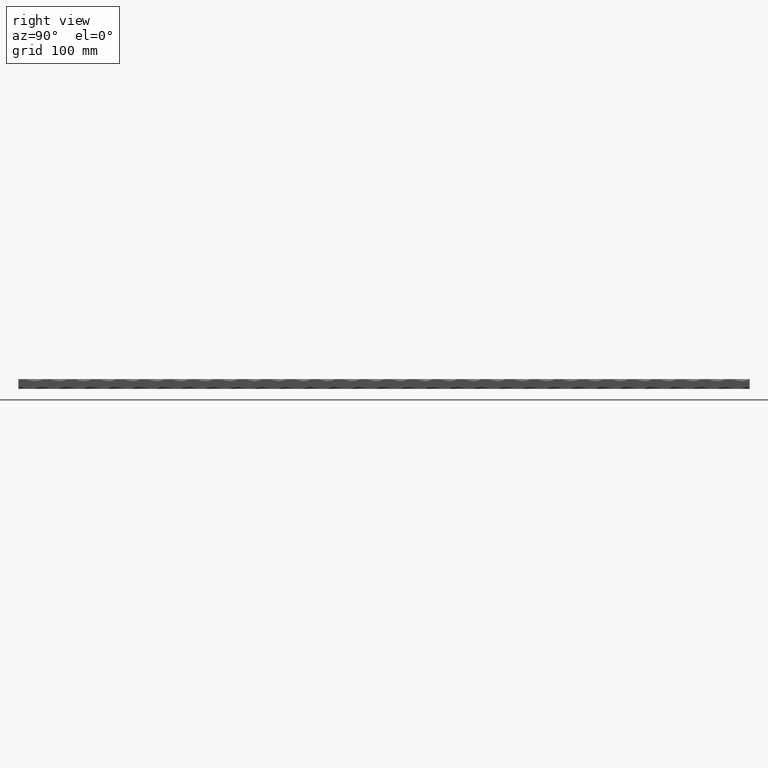
[diagram: clean part render]
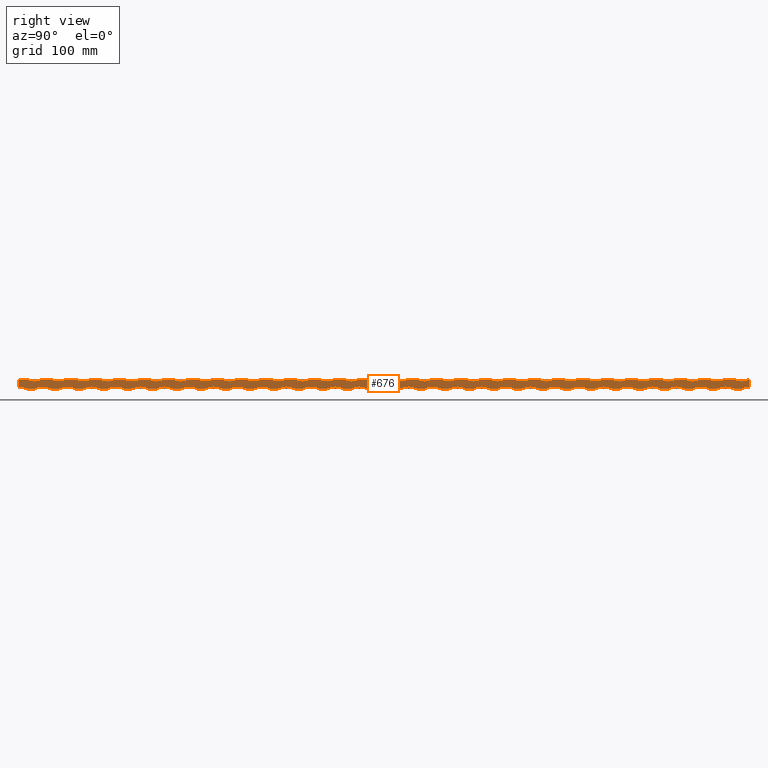
[diagram: same view with one face highlighted and labeled with its STEP entity id]
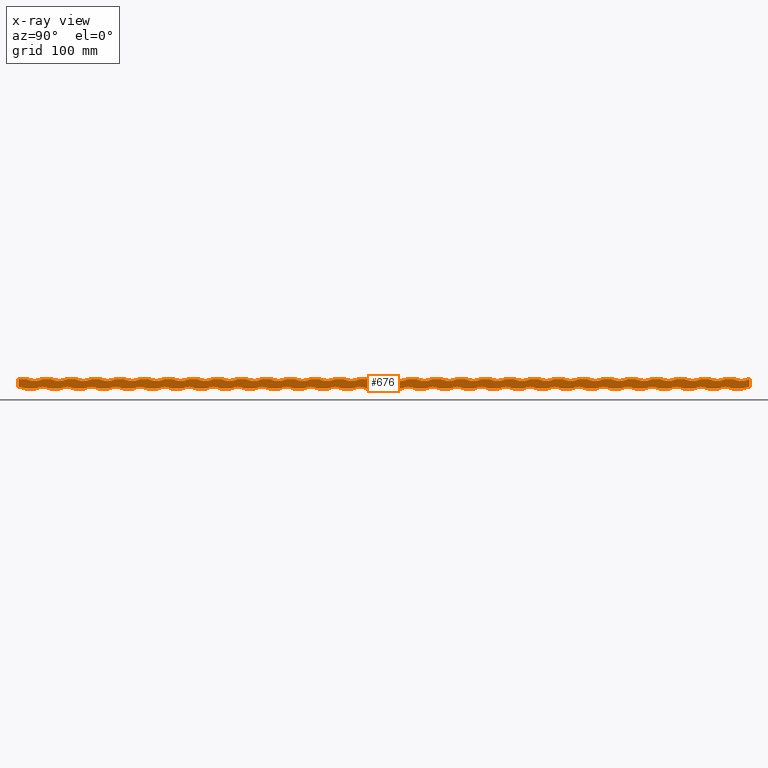
[diagram: x-ray of the same camera — body ghosted, the highlighted face saturated]
A machine part, right view. The second image highlights one B-rep face of the part: STEP entity #676.
The next image is the same camera in x-ray: the body ghosted, the highlighted face saturated — about 0% of this face is hidden behind the body in this view.
In plain terms, the highlighted planar face has unit normal (-1, 0, 0).
Its self-contained STEP definition (entity closure, byte-faithful):
#55 = DIRECTION ( 'NONE',  ( -0.000000000000000000, -1.000000000000000000, -0.000000000000000000 ) ) ;
#69 = AXIS2_PLACEMENT_3D ( 'NONE', #7534, #6528, #850 ) ;
#74 = VERTEX_POINT ( 'NONE', #5712 ) ;
#77 = DIRECTION ( 'NONE',  ( 1.632680918566404574E-16, 0.000000000000000000, 1.000000000000000000 ) ) ;
#96 = CARTESIAN_POINT ( 'NONE',  ( 6.000000000000001776, 29.99999999999996447, 6.000000000000000888 ) ) ;
#121 = DIRECTION ( 'NONE',  ( -2.040851148208006026E-16, 0.000000000000000000, -1.000000000000000000 ) ) ;
#125 = DIRECTION ( 'NONE',  ( -0.000000000000000000, -1.000000000000000000, -0.000000000000000000 ) ) ;
#155 = DIRECTION ( 'NONE',  ( -0.000000000000000000, -1.000000000000000000, -0.000000000000000000 ) ) ;
#165 = EDGE_CURVE ( 'NONE', #9865, #2082, #8959, .T. ) ;
#181 = VECTOR ( 'NONE', #155, 1000.000000000000000 ) ;
#228 = VERTEX_POINT ( 'NONE', #3615 ) ;
#233 = CARTESIAN_POINT ( 'NONE',  ( 5.999999999999995559, -300.0000000000000000, -24.75000000000002132 ) ) ;
#239 = VERTEX_POINT ( 'NONE', #12525 ) ;
#301 = EDGE_CURVE ( 'NONE', #5498, #3734, #4106, .T. ) ;
#316 = AXIS2_PLACEMENT_3D ( 'NONE', #11606, #13960, #619 ) ;
#321 = CARTESIAN_POINT ( 'NONE',  ( 6.000000000000000888, 450.0000000000000000, 6.000000000000000888 ) ) ;
#345 = VECTOR ( 'NONE', #13738, 1000.000000000000000 ) ;
#348 = AXIS2_PLACEMENT_3D ( 'NONE', #10404, #5922, #6970 ) ;
#354 = CARTESIAN_POINT ( 'NONE',  ( 6.000000000000001776, -210.0000000000000000, 6.000000000000000888 ) ) ;
#375 = AXIS2_PLACEMENT_3D ( 'NONE', #9559, #3924, #1769 ) ;
#398 = VERTEX_POINT ( 'NONE', #7036 ) ;
#402 = VECTOR ( 'NONE', #12047, 1000.000000000000000 ) ;
#406 = CARTESIAN_POINT ( 'NONE',  ( 6.000000000000001776, -120.0000000000000000, 6.000000000000000888 ) ) ;
#420 = VECTOR ( 'NONE', #8301, 1000.000000000000000 ) ;
#426 = CARTESIAN_POINT ( 'NONE',  ( 5.999999999999999112, 450.0000000000000000, -5.999999999999999112 ) ) ;
#431 = AXIS2_PLACEMENT_3D ( 'NONE', #1066, #8869, #2204 ) ;
#461 = DIRECTION ( 'NONE',  ( -0.000000000000000000, -1.000000000000000000, -0.000000000000000000 ) ) ;
#519 = LINE ( 'NONE', #11601, #2084 ) ;
#588 = VERTEX_POINT ( 'NONE', #1432 ) ;
#617 = DIRECTION ( 'NONE',  ( -0.000000000000000000, -1.000000000000000000, -0.000000000000000000 ) ) ;
#619 = DIRECTION ( 'NONE',  ( 1.445602896647339410E-16, 0.000000000000000000, 1.000000000000000000 ) ) ;
#635 = ORIENTED_EDGE ( 'NONE', *, *, #10769, .F. ) ;
#648 = CARTESIAN_POINT ( 'NONE',  ( 6.000000000000000888, -130.0000000000000000, 24.75000000000002487 ) ) ;
#667 = DIRECTION ( 'NONE',  ( -1.000000000000000000, 0.000000000000000000, 2.220446049250313081E-16 ) ) ;
#676 = ADVANCED_FACE ( 'NONE', ( #11231 ), #2718, .F. ) ;
#679 = CARTESIAN_POINT ( 'NONE',  ( 6.000000000000000888, -410.0000000000000568, 6.000000000000000888 ) ) ;
#698 = AXIS2_PLACEMENT_3D ( 'NONE', #10259, #8071, #1370 ) ;
#705 = CIRCLE ( 'NONE', #2476, 21.25000000000002487 ) ;
#706 = DIRECTION ( 'NONE',  ( -0.000000000000000000, -1.000000000000000000, -0.000000000000000000 ) ) ;
#720 = LINE ( 'NONE', #3856, #3859 ) ;
#732 = ORIENTED_EDGE ( 'NONE', *, *, #1698, .F. ) ;
#744 = VERTEX_POINT ( 'NONE', #805 ) ;
#763 = CARTESIAN_POINT ( 'NONE',  ( 6.000000000000000000, 19.99999999999996092, 24.75000000000002487 ) ) ;
#791 = AXIS2_PLACEMENT_3D ( 'NONE', #11512, #7317, #9151 ) ;
#805 = CARTESIAN_POINT ( 'NONE',  ( 5.999999999999998224, 410.0000000000000000, -6.000000000000000000 ) ) ;
#815 = DIRECTION ( 'NONE',  ( -2.040851148208006026E-16, 0.000000000000000000, -1.000000000000000000 ) ) ;
#821 = VERTEX_POINT ( 'NONE', #6756 ) ;
#825 = AXIS2_PLACEMENT_3D ( 'NONE', #10925, #14292, #1843 ) ;
#829 = DIRECTION ( 'NONE',  ( -0.000000000000000000, -1.000000000000000000, -0.000000000000000000 ) ) ;
#850 = DIRECTION ( 'NONE',  ( -2.040851148208006026E-16, 1.776356839400250465E-15, -1.000000000000000000 ) ) ;
#855 = CARTESIAN_POINT ( 'NONE',  ( 5.999999999999999112, -109.9999999999999858, -6.000000000000000000 ) ) ;
#863 = ORIENTED_EDGE ( 'NONE', *, *, #13345, .T. ) ;
#868 = CIRCLE ( 'NONE', #1050, 21.25000000000002842 ) ;
#873 = DIRECTION ( 'NONE',  ( 1.000000000000000000, -0.000000000000000000, -1.445602896647339410E-16 ) ) ;
#892 = AXIS2_PLACEMENT_3D ( 'NONE', #12692, #6010, #8282 ) ;
#932 = DIRECTION ( 'NONE',  ( -2.040851148208006026E-16, 0.000000000000000000, -1.000000000000000000 ) ) ;
#942 = CIRCLE ( 'NONE', #69, 21.25000000000002487 ) ;
#953 = EDGE_CURVE ( 'NONE', #5999, #6453, #9298, .T. ) ;
#960 = VERTEX_POINT ( 'NONE', #9157 ) ;
#977 = CARTESIAN_POINT ( 'NONE',  ( 5.999999999999999112, 450.0000000000000000, -5.999999999999999112 ) ) ;
#984 = VERTEX_POINT ( 'NONE', #10450 ) ;
#990 = AXIS2_PLACEMENT_3D ( 'NONE', #4523, #8035, #13410 ) ;
#1010 = DIRECTION ( 'NONE',  ( -0.000000000000000000, -1.000000000000000000, -0.000000000000000000 ) ) ;
#1037 = EDGE_CURVE ( 'NONE', #13809, #5285, #4962, .T. ) ;
#1050 = AXIS2_PLACEMENT_3D ( 'NONE', #5209, #9663, #5162 ) ;
#1066 = CARTESIAN_POINT ( 'NONE',  ( 6.000000000000000888, -250.0000000000000000, 24.75000000000002487 ) ) ;
#1079 = DIRECTION ( 'NONE',  ( -0.000000000000000000, -1.000000000000000000, -0.000000000000000000 ) ) ;
#1084 = ORIENTED_EDGE ( 'NONE', *, *, #6187, .T. ) ;
#1104 = VERTEX_POINT ( 'NONE', #11774 ) ;
#1122 = ORIENTED_EDGE ( 'NONE', *, *, #9330, .T. ) ;
#1132 = VERTEX_POINT ( 'NONE', #8389 ) ;
#1146 = DIRECTION ( 'NONE',  ( -2.040851148208006026E-16, 0.000000000000000000, -1.000000000000000000 ) ) ;
#1152 = CARTESIAN_POINT ( 'NONE',  ( 5.999999999999999112, 450.0000000000000000, -5.999999999999999112 ) ) ;
#1155 = CARTESIAN_POINT ( 'NONE',  ( 6.000000000000000000, 369.9999999999999432, 6.000000000000000888 ) ) ;
#1192 = CARTESIAN_POINT ( 'NONE',  ( 5.999999999999999112, 450.0000000000000000, -5.999999999999999112 ) ) ;
#1195 = DIRECTION ( 'NONE',  ( -0.000000000000000000, -1.000000000000000000, -0.000000000000000000 ) ) ;
#1198 = EDGE_CURVE ( 'NONE', #398, #1449, #7218, .T. ) ;
#1211 = AXIS2_PLACEMENT_3D ( 'NONE', #13336, #12176, #932 ) ;
#1225 = VERTEX_POINT ( 'NONE', #9648 ) ;
#1240 = DIRECTION ( 'NONE',  ( -1.000000000000000000, 0.000000000000000000, 2.220446049250313081E-16 ) ) ;
#1271 = CARTESIAN_POINT ( 'NONE',  ( 5.999999999999995559, -149.9999999999999716, -24.75000000000002132 ) ) ;
#1295 = DIRECTION ( 'NONE',  ( -0.000000000000000000, -1.000000000000000000, -0.000000000000000000 ) ) ;
#1310 = CARTESIAN_POINT ( 'NONE',  ( 6.000000000000000000, 279.9999999999999432, 6.000000000000000888 ) ) ;
#1336 = CARTESIAN_POINT ( 'NONE',  ( 6.000000000000000000, 399.9999999999999432, 6.000000000000000888 ) ) ;
#1339 = CARTESIAN_POINT ( 'NONE',  ( 6.000000000000001776, 210.0000000000000284, 6.000000000000000888 ) ) ;
#1340 = CARTESIAN_POINT ( 'NONE',  ( 5.999999999999998224, 49.99999999999998579, -6.000000000000000000 ) ) ;
#1361 = DIRECTION ( 'NONE',  ( 1.000000000000000000, -0.000000000000000000, -1.445602896647339410E-16 ) ) ;
#1370 = DIRECTION ( 'NONE',  ( -2.040851148208006026E-16, 0.000000000000000000, -1.000000000000000000 ) ) ;
#1388 = CARTESIAN_POINT ( 'NONE',  ( 5.999999999999995559, 60.00000000000000000, -24.75000000000002132 ) ) ;
#1393 = ORIENTED_EDGE ( 'NONE', *, *, #11138, .T. ) ;
#1394 = VECTOR ( 'NONE', #13339, 1000.000000000000000 ) ;
#1429 = VERTEX_POINT ( 'NONE', #4907 ) ;
#1432 = CARTESIAN_POINT ( 'NONE',  ( 6.000000000000000888, -110.0000000000000426, 6.000000000000000888 ) ) ;
#1441 = CARTESIAN_POINT ( 'NONE',  ( 5.999999999999999112, 450.0000000000000000, -5.999999999999999112 ) ) ;
#1442 = CARTESIAN_POINT ( 'NONE',  ( 6.000000000000000888, 450.0000000000000000, 6.000000000000000888 ) ) ;
#1449 = VERTEX_POINT ( 'NONE', #13752 ) ;
#1470 = CIRCLE ( 'NONE', #1823, 21.25000000000002842 ) ;
#1475 = CARTESIAN_POINT ( 'NONE',  ( 6.000000000000000888, 450.0000000000000000, 6.000000000000000888 ) ) ;
#1507 = VERTEX_POINT ( 'NONE', #7315 ) ;
#1508 = CIRCLE ( 'NONE', #11472, 21.25000000000002487 ) ;
#1555 = LINE ( 'NONE', #12119, #13942 ) ;
#1568 = EDGE_CURVE ( 'NONE', #11582, #12984, #6677, .T. ) ;
#1575 = EDGE_CURVE ( 'NONE', #12929, #7190, #9820, .T. ) ;
#1631 = ORIENTED_EDGE ( 'NONE', *, *, #1575, .T. ) ;
#1632 = CARTESIAN_POINT ( 'NONE',  ( 6.000000000000000888, 450.0000000000000000, 6.000000000000000888 ) ) ;
#1647 = AXIS2_PLACEMENT_3D ( 'NONE', #13855, #5890, #8157 ) ;
#1654 = VERTEX_POINT ( 'NONE', #5342 ) ;
#1667 = ORIENTED_EDGE ( 'NONE', *, *, #10755, .F. ) ;
#1669 = CARTESIAN_POINT ( 'NONE',  ( 6.000000000000001776, -149.9999999999999716, 6.000000000000000888 ) ) ;
#1686 = AXIS2_PLACEMENT_3D ( 'NONE', #2716, #3884, #5178 ) ;
#1698 = EDGE_CURVE ( 'NONE', #6822, #11154, #11931, .T. ) ;
#1725 = CARTESIAN_POINT ( 'NONE',  ( 6.000000000000000888, 450.0000000000000000, 6.000000000000000888 ) ) ;
#1748 = CIRCLE ( 'NONE', #11807, 21.25000000000002487 ) ;
#1767 = DIRECTION ( 'NONE',  ( -1.000000000000000000, 0.000000000000000000, 2.220446049250313081E-16 ) ) ;
#1769 = DIRECTION ( 'NONE',  ( 1.632680918566404574E-16, 0.000000000000000000, 1.000000000000000000 ) ) ;
#1776 = EDGE_CURVE ( 'NONE', #5311, #4765, #4236, .T. ) ;
#1782 = EDGE_CURVE ( 'NONE', #5155, #7004, #2483, .T. ) ;
#1786 = VECTOR ( 'NONE', #617, 1000.000000000000000 ) ;
#1823 = AXIS2_PLACEMENT_3D ( 'NONE', #4515, #4714, #3434 ) ;
#1831 = VERTEX_POINT ( 'NONE', #4989 ) ;
#1843 = DIRECTION ( 'NONE',  ( -2.040851148208006026E-16, 0.000000000000000000, -1.000000000000000000 ) ) ;
#1884 = EDGE_CURVE ( 'NONE', #11229, #1104, #12751, .T. ) ;
#1890 = DIRECTION ( 'NONE',  ( -1.000000000000000000, 0.000000000000000000, 2.220446049250313081E-16 ) ) ;
#1913 = VECTOR ( 'NONE', #13687, 1000.000000000000000 ) ;
#1917 = CIRCLE ( 'NONE', #2195, 21.25000000000002487 ) ;
#1933 = CARTESIAN_POINT ( 'NONE',  ( 5.999999999999995559, -270.0000000000000000, -24.75000000000002132 ) ) ;
#1948 = DIRECTION ( 'NONE',  ( 1.000000000000000000, -0.000000000000000000, -1.445602896647339410E-16 ) ) ;
#1959 = CARTESIAN_POINT ( 'NONE',  ( 6.000000000000000888, 450.0000000000000000, 6.000000000000000888 ) ) ;
#1999 = CARTESIAN_POINT ( 'NONE',  ( 6.000000000000000888, 450.0000000000000000, 6.000000000000000888 ) ) ;
#2018 = VERTEX_POINT ( 'NONE', #9775 ) ;
#2033 = ORIENTED_EDGE ( 'NONE', *, *, #3748, .F. ) ;
#2035 = VECTOR ( 'NONE', #3659, 1000.000000000000000 ) ;
#2065 = CARTESIAN_POINT ( 'NONE',  ( 5.999999999999998224, 200.0000000000000000, -6.000000000000000000 ) ) ;
#2071 = DIRECTION ( 'NONE',  ( -0.000000000000000000, -1.000000000000000000, -0.000000000000000000 ) ) ;
#2082 = VERTEX_POINT ( 'NONE', #13041 ) ;
#2084 = VECTOR ( 'NONE', #14008, 1000.000000000000000 ) ;
#2088 = CIRCLE ( 'NONE', #13750, 21.25000000000002487 ) ;
#2090 = DIRECTION ( 'NONE',  ( 1.000000000000000000, -0.000000000000000000, -1.445602896647339410E-16 ) ) ;
#2094 = CARTESIAN_POINT ( 'NONE',  ( 6.000000000000000000, 110.0000000000000426, 24.75000000000002487 ) ) ;
#2109 = ORIENTED_EDGE ( 'NONE', *, *, #14384, .F. ) ;
#2111 = CARTESIAN_POINT ( 'NONE',  ( 5.999999999999999112, -139.9999999999999716, -6.000000000000000000 ) ) ;
#2127 = CARTESIAN_POINT ( 'NONE',  ( 6.000000000000001776, -6.938893903907228378E-15, 6.000000000000000888 ) ) ;
#2135 = LINE ( 'NONE', #426, #4752 ) ;
#2145 = EDGE_CURVE ( 'NONE', #4596, #7551, #10888, .T. ) ;
#2147 = EDGE_CURVE ( 'NONE', #5105, #8439, #9098, .T. ) ;
#2153 = CIRCLE ( 'NONE', #8498, 21.25000000000002487 ) ;
#2169 = LINE ( 'NONE', #7801, #14185 ) ;
#2187 = VERTEX_POINT ( 'NONE', #10953 ) ;
#2191 = DIRECTION ( 'NONE',  ( -0.000000000000000000, -1.000000000000000000, -0.000000000000000000 ) ) ;
#2195 = AXIS2_PLACEMENT_3D ( 'NONE', #6944, #5792, #121 ) ;
#2200 = AXIS2_PLACEMENT_3D ( 'NONE', #2094, #873, #7510 ) ;
#2204 = DIRECTION ( 'NONE',  ( 1.632680918566404574E-16, 0.000000000000000000, 1.000000000000000000 ) ) ;
#2246 = VERTEX_POINT ( 'NONE', #3689 ) ;
#2259 = VECTOR ( 'NONE', #2071, 1000.000000000000000 ) ;
#2265 = DIRECTION ( 'NONE',  ( -0.000000000000000000, -1.000000000000000000, -0.000000000000000000 ) ) ;
#2279 = DIRECTION ( 'NONE',  ( -1.000000000000000000, 0.000000000000000000, 2.220446049250313081E-16 ) ) ;
#2291 = ORIENTED_EDGE ( 'NONE', *, *, #11304, .F. ) ;
#2321 = EDGE_CURVE ( 'NONE', #13171, #14209, #11557, .T. ) ;
#2338 = DIRECTION ( 'NONE',  ( -2.040851148208006026E-16, 0.000000000000000000, -1.000000000000000000 ) ) ;
#2339 = VECTOR ( 'NONE', #9698, 1000.000000000000000 ) ;
#2345 = EDGE_CURVE ( 'NONE', #11637, #7004, #4221, .T. ) ;
#2351 = DIRECTION ( 'NONE',  ( -0.000000000000000000, -1.000000000000000000, -0.000000000000000000 ) ) ;
#2379 = DIRECTION ( 'NONE',  ( -2.040851148208006026E-16, 0.000000000000000000, -1.000000000000000000 ) ) ;
#2385 = VERTEX_POINT ( 'NONE', #12403 ) ;
#2401 = CARTESIAN_POINT ( 'NONE',  ( 6.000000000000000000, 139.9999999999999716, 24.75000000000002487 ) ) ;
#2438 = EDGE_CURVE ( 'NONE', #13809, #3150, #10509, .T. ) ;
#2440 = EDGE_CURVE ( 'NONE', #3406, #7407, #7182, .T. ) ;
#2442 = VECTOR ( 'NONE', #4651, 1000.000000000000000 ) ;
#2456 = CARTESIAN_POINT ( 'NONE',  ( 6.000000000000000888, 450.0000000000000000, 6.000000000000000888 ) ) ;
#2476 = AXIS2_PLACEMENT_3D ( 'NONE', #14157, #8663, #7673 ) ;
#2479 = DIRECTION ( 'NONE',  ( 1.632680918566404574E-16, 0.000000000000000000, 1.000000000000000000 ) ) ;
#2483 = LINE ( 'NONE', #13515, #11048 ) ;
#2558 = EDGE_CURVE ( 'NONE', #398, #1831, #13791, .T. ) ;
#2591 = CARTESIAN_POINT ( 'NONE',  ( 5.999999999999999112, -169.9999999999999716, -6.000000000000000000 ) ) ;
#2622 = CIRCLE ( 'NONE', #698, 21.25000000000002487 ) ;
#2657 = ORIENTED_EDGE ( 'NONE', *, *, #4985, .T. ) ;
#2669 = VECTOR ( 'NONE', #8235, 1000.000000000000000 ) ;
#2695 = EDGE_CURVE ( 'NONE', #8251, #5829, #10131, .T. ) ;
#2701 = CARTESIAN_POINT ( 'NONE',  ( 6.000000000000000888, 450.0000000000000000, 6.000000000000000888 ) ) ;
#2716 = CARTESIAN_POINT ( 'NONE',  ( 6.000000000000000000, 49.99999999999998579, 24.75000000000002487 ) ) ;
#2717 = ORIENTED_EDGE ( 'NONE', *, *, #14370, .F. ) ;
#2718 = PLANE ( 'NONE',  #316 ) ;
#2720 = EDGE_CURVE ( 'NONE', #7232, #11011, #11913, .T. ) ;
#2723 = ORIENTED_EDGE ( 'NONE', *, *, #11321, .T. ) ;
#2724 = CARTESIAN_POINT ( 'NONE',  ( 6.000000000000001776, -60.00000000000000000, 6.000000000000000888 ) ) ;
#2797 = VECTOR ( 'NONE', #10304, 1000.000000000000000 ) ;
#2800 = EDGE_CURVE ( 'NONE', #11582, #2385, #8397, .T. ) ;
#2832 = VECTOR ( 'NONE', #125, 1000.000000000000000 ) ;
#2855 = ORIENTED_EDGE ( 'NONE', *, *, #1782, .F. ) ;
#2874 = VERTEX_POINT ( 'NONE', #4766 ) ;
#2876 = CARTESIAN_POINT ( 'NONE',  ( 5.999999999999999112, 450.0000000000000000, -5.999999999999999112 ) ) ;
#2926 = CARTESIAN_POINT ( 'NONE',  ( 5.999999999999999112, -450.0000000000000000, -5.999999999999999112 ) ) ;
#2928 = CIRCLE ( 'NONE', #12352, 21.25000000000002842 ) ;
#2932 = DIRECTION ( 'NONE',  ( -0.000000000000000000, -1.000000000000000000, -0.000000000000000000 ) ) ;
#2941 = VECTOR ( 'NONE', #6660, 1000.000000000000000 ) ;
#2950 = CIRCLE ( 'NONE', #431, 21.25000000000002842 ) ;
#2953 = ORIENTED_EDGE ( 'NONE', *, *, #8872, .T. ) ;
#2964 = VERTEX_POINT ( 'NONE', #2127 ) ;
#2977 = VERTEX_POINT ( 'NONE', #3735 ) ;
#2991 = ORIENTED_EDGE ( 'NONE', *, *, #3557, .T. ) ;
#2992 = DIRECTION ( 'NONE',  ( 1.632680918566404574E-16, 1.795949010423044909E-15, 1.000000000000000000 ) ) ;
#3012 = DIRECTION ( 'NONE',  ( -1.000000000000000000, 0.000000000000000000, 2.220446049250313081E-16 ) ) ;
#3035 = VERTEX_POINT ( 'NONE', #855 ) ;
#3043 = ORIENTED_EDGE ( 'NONE', *, *, #6445, .T. ) ;
#3055 = ORIENTED_EDGE ( 'NONE', *, *, #2800, .F. ) ;
#3073 = CARTESIAN_POINT ( 'NONE',  ( 5.999999999999998224, 320.0000000000000000, -6.000000000000000000 ) ) ;
#3097 = DIRECTION ( 'NONE',  ( -1.000000000000000000, 0.000000000000000000, 2.220446049250313081E-16 ) ) ;
#3105 = LINE ( 'NONE', #10021, #2941 ) ;
#3150 = VERTEX_POINT ( 'NONE', #14436 ) ;
#3151 = CARTESIAN_POINT ( 'NONE',  ( 5.999999999999998224, -159.9999999999999716, -6.000000000000000000 ) ) ;
#3192 = ORIENTED_EDGE ( 'NONE', *, *, #1037, .F. ) ;
#3208 = VERTEX_POINT ( 'NONE', #5743 ) ;
#3232 = VECTOR ( 'NONE', #461, 1000.000000000000000 ) ;
#3238 = EDGE_CURVE ( 'NONE', #1132, #13619, #4734, .T. ) ;
#3288 = CIRCLE ( 'NONE', #12920, 21.25000000000002487 ) ;
#3296 = DIRECTION ( 'NONE',  ( -1.000000000000000000, 0.000000000000000000, 2.220446049250313081E-16 ) ) ;
#3297 = CIRCLE ( 'NONE', #8411, 21.25000000000002842 ) ;
#3300 = AXIS2_PLACEMENT_3D ( 'NONE', #13365, #2279, #10072 ) ;
#3350 = CARTESIAN_POINT ( 'NONE',  ( 5.999999999999995559, 210.0000000000000284, -24.75000000000002132 ) ) ;
#3377 = EDGE_CURVE ( 'NONE', #4596, #2964, #5795, .T. ) ;
#3399 = CARTESIAN_POINT ( 'NONE',  ( 6.000000000000001776, 180.0000000000000000, 6.000000000000000888 ) ) ;
#3406 = VERTEX_POINT ( 'NONE', #9261 ) ;
#3410 = VECTOR ( 'NONE', #12572, 1000.000000000000000 ) ;
#3419 = EDGE_CURVE ( 'NONE', #2874, #9504, #9418, .T. ) ;
#3428 = EDGE_CURVE ( 'NONE', #6134, #8571, #5948, .T. ) ;
#3429 = CARTESIAN_POINT ( 'NONE',  ( 6.000000000000000888, 450.0000000000000000, 6.000000000000000888 ) ) ;
#3434 = DIRECTION ( 'NONE',  ( 1.632680918566404574E-16, 0.000000000000000000, 1.000000000000000000 ) ) ;
#3441 = EDGE_CURVE ( 'NONE', #821, #4765, #13230, .T. ) ;
#3449 = VECTOR ( 'NONE', #10742, 1000.000000000000000 ) ;
#3456 = CARTESIAN_POINT ( 'NONE',  ( 6.000000000000000888, 450.0000000000000000, 6.000000000000000888 ) ) ;
#3459 = CARTESIAN_POINT ( 'NONE',  ( 5.999999999999999112, 450.0000000000000000, -5.999999999999999112 ) ) ;
#3461 = VERTEX_POINT ( 'NONE', #13640 ) ;
#3464 = LINE ( 'NONE', #7660, #7661 ) ;
#3481 = CARTESIAN_POINT ( 'NONE',  ( 6.000000000000000888, 450.0000000000000000, 6.000000000000000888 ) ) ;
#3483 = VECTOR ( 'NONE', #7493, 1000.000000000000000 ) ;
#3486 = DIRECTION ( 'NONE',  ( -2.040851148208006026E-16, 1.632680918566404821E-15, -1.000000000000000000 ) ) ;
#3502 = VECTOR ( 'NONE', #3819, 1000.000000000000000 ) ;
#3543 = DIRECTION ( 'NONE',  ( -0.000000000000000000, -1.000000000000000000, -0.000000000000000000 ) ) ;
#3549 = VECTOR ( 'NONE', #4847, 1000.000000000000000 ) ;
#3557 = EDGE_CURVE ( 'NONE', #10517, #9462, #1748, .T. ) ;
#3577 = EDGE_LOOP ( 'NONE', ( #10142, #4201, #12969, #7903, #11921, #8318, #4045, #2717, #12800, #635, #1084, #10593, #6049, #12183, #7026, #11279, #6731, #9651, #14381, #9158, #3913, #9284, #11995, #14375, #1631, #2291, #5590, #11403, #14196, #5984, #9410, #6368, #13896, #4102, #8398, #12732, #863, #9447, #2723, #7954, #6908, #3669, #2991, #6319, #11713, #2855, #8247, #3192, #7366, #8771, #6334, #12484, #6862, #2033, #11709, #13254, #11890, #10844, #6567, #8050, #10695, #13108, #11111, #11271, #7876, #1122, #4546, #9953, #6628, #6656, #4311, #3910, #4487, #2953, #10235, #3043, #7559, #4913, #9140, #7558, #7913, #11970, #1667, #2657, #5429, #4620, #6399, #6354, #6963, #9812, #12219, #4367, #13658, #6465, #10907, #11474, #12252, #7027, #4478, #9503, #7804, #7659, #8610, #11812, #5991, #11608, #9594, #7377, #11378, #4077, #732, #6494, #12085, #5853, #3055, #11958, #7554, #14017, #1393, #9170, #2109, #9636, #5169 ) ) ;
#3596 = DIRECTION ( 'NONE',  ( -1.000000000000000000, 0.000000000000000000, 2.220446049250313081E-16 ) ) ;
#3613 = CARTESIAN_POINT ( 'NONE',  ( 5.999999999999999112, 440.0000000000000000, -6.000000000000000000 ) ) ;
#3615 = CARTESIAN_POINT ( 'NONE',  ( 5.999999999999999112, 220.0000000000000284, -6.000000000000000000 ) ) ;
#3642 = EDGE_CURVE ( 'NONE', #8606, #2246, #6805, .T. ) ;
#3659 = DIRECTION ( 'NONE',  ( -0.000000000000000000, -1.000000000000000000, -0.000000000000000000 ) ) ;
#3669 = ORIENTED_EDGE ( 'NONE', *, *, #7106, .F. ) ;
#3682 = DIRECTION ( 'NONE',  ( -0.000000000000000000, -1.000000000000000000, -0.000000000000000000 ) ) ;
#3684 = AXIS2_PLACEMENT_3D ( 'NONE', #7416, #8621, #9687 ) ;
#3689 = CARTESIAN_POINT ( 'NONE',  ( 6.000000000000000000, 450.0000000000000000, -3.499999999999996891 ) ) ;
#3692 = VECTOR ( 'NONE', #8259, 1000.000000000000000 ) ;
#3723 = VERTEX_POINT ( 'NONE', #8911 ) ;
#3734 = VERTEX_POINT ( 'NONE', #96 ) ;
#3735 = CARTESIAN_POINT ( 'NONE',  ( 5.999999999999998224, 110.0000000000000426, -6.000000000000000000 ) ) ;
#3737 = EDGE_CURVE ( 'NONE', #6176, #7198, #4360, .T. ) ;
#3747 = DIRECTION ( 'NONE',  ( 1.632680918566404574E-16, 0.000000000000000000, 1.000000000000000000 ) ) ;
#3748 = EDGE_CURVE ( 'NONE', #744, #5551, #11348, .T. ) ;
#3780 = AXIS2_PLACEMENT_3D ( 'NONE', #8913, #11168, #11268 ) ;
#3819 = DIRECTION ( 'NONE',  ( -1.445602896647339163E-16, -0.000000000000000000, -1.000000000000000000 ) ) ;
#3856 = CARTESIAN_POINT ( 'NONE',  ( 5.999999999999999112, 450.0000000000000000, -5.999999999999999112 ) ) ;
#3857 = EDGE_CURVE ( 'NONE', #11875, #8571, #7678, .T. ) ;
#3859 = VECTOR ( 'NONE', #11718, 1000.000000000000000 ) ;
#3861 = VERTEX_POINT ( 'NONE', #11541 ) ;
#3884 = DIRECTION ( 'NONE',  ( 1.000000000000000000, -0.000000000000000000, -1.445602896647339410E-16 ) ) ;
#3910 = ORIENTED_EDGE ( 'NONE', *, *, #14031, .T. ) ;
#3913 = ORIENTED_EDGE ( 'NONE', *, *, #7566, .T. ) ;
#3924 = DIRECTION ( 'NONE',  ( 1.000000000000000000, -0.000000000000000000, -1.445602896647339410E-16 ) ) ;
#3968 = EDGE_CURVE ( 'NONE', #2187, #3150, #519, .T. ) ;
#4011 = CARTESIAN_POINT ( 'NONE',  ( 5.999999999999995559, 239.9999999999999432, -24.75000000000002132 ) ) ;
#4045 = ORIENTED_EDGE ( 'NONE', *, *, #13235, .T. ) ;
#4058 = DIRECTION ( 'NONE',  ( 1.632680918566404574E-16, 0.000000000000000000, 1.000000000000000000 ) ) ;
#4077 = ORIENTED_EDGE ( 'NONE', *, *, #14460, .T. ) ;
#4092 = CARTESIAN_POINT ( 'NONE',  ( 5.999999999999995559, 149.9999999999999716, -24.75000000000002132 ) ) ;
#4102 = ORIENTED_EDGE ( 'NONE', *, *, #11043, .F. ) ;
#4106 = LINE ( 'NONE', #4643, #11611 ) ;
#4111 = VERTEX_POINT ( 'NONE', #2065 ) ;
#4121 = EDGE_CURVE ( 'NONE', #5999, #1507, #3464, .T. ) ;
#4131 = VECTOR ( 'NONE', #1295, 1000.000000000000000 ) ;
#4143 = CARTESIAN_POINT ( 'NONE',  ( 6.000000000000000888, 450.0000000000000000, 6.000000000000000888 ) ) ;
#4201 = ORIENTED_EDGE ( 'NONE', *, *, #10067, .F. ) ;
#4221 = CIRCLE ( 'NONE', #892, 21.25000000000002487 ) ;
#4236 = CIRCLE ( 'NONE', #14144, 21.25000000000002842 ) ;
#4241 = VERTEX_POINT ( 'NONE', #9009 ) ;
#4255 = VERTEX_POINT ( 'NONE', #7771 ) ;
#4256 = CARTESIAN_POINT ( 'NONE',  ( 6.000000000000001776, -329.9999999999999432, 6.000000000000000888 ) ) ;
#4278 = LINE ( 'NONE', #6722, #11096 ) ;
#4311 = ORIENTED_EDGE ( 'NONE', *, *, #7404, .F. ) ;
#4321 = CIRCLE ( 'NONE', #8286, 21.25000000000002487 ) ;
#4324 = EDGE_CURVE ( 'NONE', #2977, #11829, #1917, .T. ) ;
#4330 = CARTESIAN_POINT ( 'NONE',  ( 6.000000000000000000, 80.00000000000001421, 24.75000000000002487 ) ) ;
#4343 = AXIS2_PLACEMENT_3D ( 'NONE', #4441, #12220, #6455 ) ;
#4360 = CIRCLE ( 'NONE', #6569, 21.25000000000002842 ) ;
#4367 = ORIENTED_EDGE ( 'NONE', *, *, #11140, .T. ) ;
#4369 = LINE ( 'NONE', #11173, #1394 ) ;
#4377 = EDGE_CURVE ( 'NONE', #9865, #13828, #9758, .T. ) ;
#4395 = VECTOR ( 'NONE', #13655, 1000.000000000000000 ) ;
#4402 = EDGE_CURVE ( 'NONE', #7177, #74, #2622, .T. ) ;
#4441 = CARTESIAN_POINT ( 'NONE',  ( 5.999999999999995559, -449.9999999999999432, -24.75000000000002487 ) ) ;
#4474 = EDGE_CURVE ( 'NONE', #13398, #11829, #11165, .T. ) ;
#4478 = ORIENTED_EDGE ( 'NONE', *, *, #2695, .F. ) ;
#4487 = ORIENTED_EDGE ( 'NONE', *, *, #11041, .F. ) ;
#4490 = CIRCLE ( 'NONE', #13873, 21.25000000000002842 ) ;
#4491 = EDGE_CURVE ( 'NONE', #1225, #4967, #8371, .T. ) ;
#4493 = EDGE_CURVE ( 'NONE', #7177, #984, #1555, .T. ) ;
#4515 = CARTESIAN_POINT ( 'NONE',  ( 6.000000000000000888, -100.0000000000000284, 24.75000000000002487 ) ) ;
#4523 = CARTESIAN_POINT ( 'NONE',  ( 5.999999999999995559, 300.0000000000000000, -24.75000000000002132 ) ) ;
#4526 = DIRECTION ( 'NONE',  ( 1.000000000000000000, -0.000000000000000000, -1.445602896647339410E-16 ) ) ;
#4545 = CIRCLE ( 'NONE', #12866, 21.25000000000002487 ) ;
#4546 = ORIENTED_EDGE ( 'NONE', *, *, #8878, .F. ) ;
#4559 = VECTOR ( 'NONE', #14014, 1000.000000000000000 ) ;
#4579 = LINE ( 'NONE', #11343, #2832 ) ;
#4596 = VERTEX_POINT ( 'NONE', #8753 ) ;
#4597 = EDGE_CURVE ( 'NONE', #13053, #2964, #12543, .T. ) ;
#4601 = EDGE_CURVE ( 'NONE', #6318, #9506, #705, .T. ) ;
#4605 = VERTEX_POINT ( 'NONE', #5271 ) ;
#4612 = CARTESIAN_POINT ( 'NONE',  ( 6.000000000000000888, -440.0000000000000000, 6.000000000000000888 ) ) ;
#4620 = ORIENTED_EDGE ( 'NONE', *, *, #301, .T. ) ;
#4634 = CARTESIAN_POINT ( 'NONE',  ( 5.999999999999999112, 450.0000000000000000, -5.999999999999999112 ) ) ;
#4643 = CARTESIAN_POINT ( 'NONE',  ( 6.000000000000000888, 450.0000000000000000, 6.000000000000000888 ) ) ;
#4644 = CARTESIAN_POINT ( 'NONE',  ( 6.000000000000000888, 450.0000000000000000, 6.000000000000000888 ) ) ;
#4651 = DIRECTION ( 'NONE',  ( -0.000000000000000000, -1.000000000000000000, -0.000000000000000000 ) ) ;
#4703 = VECTOR ( 'NONE', #13415, 1000.000000000000000 ) ;
#4707 = VERTEX_POINT ( 'NONE', #14395 ) ;
#4714 = DIRECTION ( 'NONE',  ( 1.000000000000000000, -0.000000000000000000, -1.445602896647339410E-16 ) ) ;
#4734 = CIRCLE ( 'NONE', #5732, 21.25000000000002487 ) ;
#4752 = VECTOR ( 'NONE', #706, 1000.000000000000000 ) ;
#4765 = VERTEX_POINT ( 'NONE', #9956 ) ;
#4766 = CARTESIAN_POINT ( 'NONE',  ( 6.000000000000000888, -200.0000000000000000, 6.000000000000000888 ) ) ;
#4836 = DIRECTION ( 'NONE',  ( 1.632680918566404574E-16, 0.000000000000000000, 1.000000000000000000 ) ) ;
#4842 = CARTESIAN_POINT ( 'NONE',  ( 5.999999999999995559, -420.0000000000000000, -24.75000000000002132 ) ) ;
#4847 = DIRECTION ( 'NONE',  ( -0.000000000000000000, -1.000000000000000000, -0.000000000000000000 ) ) ;
#4876 = LINE ( 'NONE', #13928, #3449 ) ;
#4894 = DIRECTION ( 'NONE',  ( 1.000000000000000000, -0.000000000000000000, -1.445602896647339410E-16 ) ) ;
#4897 = DIRECTION ( 'NONE',  ( 1.632680918566404574E-16, 1.795949010423044909E-15, 1.000000000000000000 ) ) ;
#4907 = CARTESIAN_POINT ( 'NONE',  ( 6.000000000000001776, -90.00000000000002842, 6.000000000000000888 ) ) ;
#4913 = ORIENTED_EDGE ( 'NONE', *, *, #11703, .T. ) ;
#4921 = CARTESIAN_POINT ( 'NONE',  ( 6.000000000000000000, 320.0000000000000000, 24.75000000000002487 ) ) ;
#4962 = LINE ( 'NONE', #13681, #3549 ) ;
#4967 = VERTEX_POINT ( 'NONE', #6132 ) ;
#4985 = EDGE_CURVE ( 'NONE', #3461, #7063, #9225, .T. ) ;
#4987 = CARTESIAN_POINT ( 'NONE',  ( 6.000000000000001776, -29.99999999999997513, 6.000000000000000888 ) ) ;
#4989 = CARTESIAN_POINT ( 'NONE',  ( 6.000000000000001776, -300.0000000000000000, 6.000000000000000888 ) ) ;
#5013 = DIRECTION ( 'NONE',  ( 1.632680918566404574E-16, 0.000000000000000000, 1.000000000000000000 ) ) ;
#5094 = DIRECTION ( 'NONE',  ( -2.040851148208006026E-16, 1.795949010423045303E-15, -1.000000000000000000 ) ) ;
#5096 = CIRCLE ( 'NONE', #13607, 21.25000000000002487 ) ;
#5105 = VERTEX_POINT ( 'NONE', #14093 ) ;
#5129 = DIRECTION ( 'NONE',  ( 1.000000000000000000, -0.000000000000000000, -1.445602896647339410E-16 ) ) ;
#5155 = VERTEX_POINT ( 'NONE', #6382 ) ;
#5156 = CARTESIAN_POINT ( 'NONE',  ( 5.999999999999999112, -19.99999999999996092, -6.000000000000000000 ) ) ;
#5162 = DIRECTION ( 'NONE',  ( 1.632680918566404574E-16, 0.000000000000000000, 1.000000000000000000 ) ) ;
#5169 = ORIENTED_EDGE ( 'NONE', *, *, #13617, .F. ) ;
#5178 = DIRECTION ( 'NONE',  ( 1.632680918566404574E-16, 1.632680918566404427E-15, 1.000000000000000000 ) ) ;
#5181 = EDGE_CURVE ( 'NONE', #4111, #228, #3288, .T. ) ;
#5194 = VERTEX_POINT ( 'NONE', #12319 ) ;
#5207 = LINE ( 'NONE', #9167, #2035 ) ;
#5209 = CARTESIAN_POINT ( 'NONE',  ( 6.000000000000000888, -430.0000000000000000, 24.75000000000002487 ) ) ;
#5219 = AXIS2_PLACEMENT_3D ( 'NONE', #1388, #3596, #3486 ) ;
#5242 = DIRECTION ( 'NONE',  ( 1.000000000000000000, -0.000000000000000000, -1.445602896647339410E-16 ) ) ;
#5249 = CARTESIAN_POINT ( 'NONE',  ( 6.000000000000000888, -320.0000000000000000, 6.000000000000000888 ) ) ;
#5261 = EDGE_CURVE ( 'NONE', #9136, #5894, #2950, .T. ) ;
#5271 = CARTESIAN_POINT ( 'NONE',  ( 5.999999999999998224, -430.0000000000000000, -6.000000000000000000 ) ) ;
#5285 = VERTEX_POINT ( 'NONE', #10042 ) ;
#5288 = DIRECTION ( 'NONE',  ( -0.000000000000000000, -1.000000000000000000, -0.000000000000000000 ) ) ;
#5300 = DIRECTION ( 'NONE',  ( -0.000000000000000000, -1.000000000000000000, -0.000000000000000000 ) ) ;
#5311 = VERTEX_POINT ( 'NONE', #1310 ) ;
#5342 = CARTESIAN_POINT ( 'NONE',  ( 5.999999999999999112, -450.0000000000000000, -3.500000000000000444 ) ) ;
#5387 = CARTESIAN_POINT ( 'NONE',  ( 6.000000000000000888, -80.00000000000001421, 6.000000000000000888 ) ) ;
#5392 = LINE ( 'NONE', #10187, #13179 ) ;
#5395 = CARTESIAN_POINT ( 'NONE',  ( 5.999999999999999112, 399.9999999999999432, -6.000000000000000000 ) ) ;
#5399 = CARTESIAN_POINT ( 'NONE',  ( 5.999999999999998224, 19.99999999999996092, -6.000000000000000000 ) ) ;
#5405 = DIRECTION ( 'NONE',  ( -0.000000000000000000, -1.000000000000000000, -0.000000000000000000 ) ) ;
#5412 = DIRECTION ( 'NONE',  ( -0.000000000000000000, -1.000000000000000000, -0.000000000000000000 ) ) ;
#5429 = ORIENTED_EDGE ( 'NONE', *, *, #12135, .F. ) ;
#5466 = CARTESIAN_POINT ( 'NONE',  ( 5.999999999999998224, 80.00000000000001421, -6.000000000000000000 ) ) ;
#5476 = DIRECTION ( 'NONE',  ( 1.632680918566404574E-16, 0.000000000000000000, 1.000000000000000000 ) ) ;
#5498 = VERTEX_POINT ( 'NONE', #6451 ) ;
#5507 = CARTESIAN_POINT ( 'NONE',  ( 6.000000000000001776, 269.9999999999999432, 6.000000000000000888 ) ) ;
#5511 = CIRCLE ( 'NONE', #8264, 21.25000000000002842 ) ;
#5518 = CARTESIAN_POINT ( 'NONE',  ( 5.999999999999999112, 130.0000000000000568, -6.000000000000000000 ) ) ;
#5530 = VERTEX_POINT ( 'NONE', #10950 ) ;
#5538 = DIRECTION ( 'NONE',  ( -2.040851148208006026E-16, 0.000000000000000000, -1.000000000000000000 ) ) ;
#5551 = VERTEX_POINT ( 'NONE', #5395 ) ;
#5590 = ORIENTED_EDGE ( 'NONE', *, *, #10479, .T. ) ;
#5594 = AXIS2_PLACEMENT_3D ( 'NONE', #1271, #9202, #5689 ) ;
#5604 = CARTESIAN_POINT ( 'NONE',  ( 5.999999999999995559, 90.00000000000002842, -24.75000000000002132 ) ) ;
#5644 = CARTESIAN_POINT ( 'NONE',  ( 6.000000000000000888, 450.0000000000000000, 6.000000000000000888 ) ) ;
#5662 = DIRECTION ( 'NONE',  ( 1.000000000000000000, -0.000000000000000000, -1.445602896647339410E-16 ) ) ;
#5664 = CARTESIAN_POINT ( 'NONE',  ( 6.000000000000000888, -140.0000000000000000, 6.000000000000000888 ) ) ;
#5689 = DIRECTION ( 'NONE',  ( -2.040851148208006026E-16, 0.000000000000000000, -1.000000000000000000 ) ) ;
#5705 = VERTEX_POINT ( 'NONE', #6835 ) ;
#5708 = LINE ( 'NONE', #11588, #3232 ) ;
#5712 = CARTESIAN_POINT ( 'NONE',  ( 5.999999999999999112, -199.9999999999999716, -6.000000000000000000 ) ) ;
#5732 = AXIS2_PLACEMENT_3D ( 'NONE', #6588, #14442, #1146 ) ;
#5743 = CARTESIAN_POINT ( 'NONE',  ( 6.000000000000000000, 129.9999999999999432, 6.000000000000000888 ) ) ;
#5747 = EDGE_CURVE ( 'NONE', #9136, #1449, #8005, .T. ) ;
#5753 = CARTESIAN_POINT ( 'NONE',  ( 6.000000000000000000, 350.0000000000000568, 24.75000000000002487 ) ) ;
#5754 = DIRECTION ( 'NONE',  ( -0.000000000000000000, -1.000000000000000000, -0.000000000000000000 ) ) ;
#5792 = DIRECTION ( 'NONE',  ( -1.000000000000000000, 0.000000000000000000, 2.220446049250313081E-16 ) ) ;
#5794 = AXIS2_PLACEMENT_3D ( 'NONE', #2401, #13638, #10250 ) ;
#5795 = CIRCLE ( 'NONE', #13427, 21.25000000000002842 ) ;
#5804 = DIRECTION ( 'NONE',  ( 1.000000000000000000, -0.000000000000000000, -1.445602896647339410E-16 ) ) ;
#5829 = VERTEX_POINT ( 'NONE', #1669 ) ;
#5853 = ORIENTED_EDGE ( 'NONE', *, *, #12134, .T. ) ;
#5854 = AXIS2_PLACEMENT_3D ( 'NONE', #9041, #8766, #13181 ) ;
#5867 = LINE ( 'NONE', #12397, #13310 ) ;
#5868 = DIRECTION ( 'NONE',  ( 1.000000000000000000, -0.000000000000000000, -1.445602896647339410E-16 ) ) ;
#5889 = AXIS2_PLACEMENT_3D ( 'NONE', #11210, #5868, #11302 ) ;
#5890 = DIRECTION ( 'NONE',  ( 1.000000000000000000, -0.000000000000000000, -1.445602896647339410E-16 ) ) ;
#5894 = VERTEX_POINT ( 'NONE', #10612 ) ;
#5922 = DIRECTION ( 'NONE',  ( 1.000000000000000000, -0.000000000000000000, -1.445602896647339410E-16 ) ) ;
#5927 = CARTESIAN_POINT ( 'NONE',  ( 6.000000000000000888, 450.0000000000000000, 6.000000000000000888 ) ) ;
#5928 = CARTESIAN_POINT ( 'NONE',  ( 5.999999999999999112, 450.0000000000000000, -5.999999999999999112 ) ) ;
#5948 = CIRCLE ( 'NONE', #8793, 21.25000000000002842 ) ;
#5953 = DIRECTION ( 'NONE',  ( 1.000000000000000000, -0.000000000000000000, -1.445602896647339410E-16 ) ) ;
#5959 = LINE ( 'NONE', #5644, #11536 ) ;
#5962 = VERTEX_POINT ( 'NONE', #9885 ) ;
#5976 = CARTESIAN_POINT ( 'NONE',  ( 6.000000000000001776, 360.0000000000000568, 6.000000000000000888 ) ) ;
#5984 = ORIENTED_EDGE ( 'NONE', *, *, #6114, .F. ) ;
#5991 = ORIENTED_EDGE ( 'NONE', *, *, #5261, .F. ) ;
#5992 = DIRECTION ( 'NONE',  ( -2.040851148208006026E-16, 0.000000000000000000, -1.000000000000000000 ) ) ;
#5999 = VERTEX_POINT ( 'NONE', #14374 ) ;
#6000 = CARTESIAN_POINT ( 'NONE',  ( 5.999999999999999112, 370.0000000000000568, -6.000000000000000000 ) ) ;
#6010 = DIRECTION ( 'NONE',  ( -1.000000000000000000, 0.000000000000000000, 2.220446049250313081E-16 ) ) ;
#6036 = EDGE_CURVE ( 'NONE', #1654, #6701, #9394, .T. ) ;
#6049 = ORIENTED_EDGE ( 'NONE', *, *, #4402, .T. ) ;
#6079 = AXIS2_PLACEMENT_3D ( 'NONE', #5753, #5804, #77 ) ;
#6091 = VECTOR ( 'NONE', #829, 1000.000000000000000 ) ;
#6114 = EDGE_CURVE ( 'NONE', #13171, #1104, #9386, .T. ) ;
#6132 = CARTESIAN_POINT ( 'NONE',  ( 5.999999999999999112, 159.9999999999999716, -6.000000000000000000 ) ) ;
#6134 = VERTEX_POINT ( 'NONE', #1155 ) ;
#6144 = LINE ( 'NONE', #3459, #181 ) ;
#6174 = LINE ( 'NONE', #8270, #4395 ) ;
#6176 = VERTEX_POINT ( 'NONE', #13331 ) ;
#6187 = EDGE_CURVE ( 'NONE', #4707, #984, #13038, .T. ) ;
#6224 = CARTESIAN_POINT ( 'NONE',  ( 5.999999999999995559, -29.99999999999997158, -24.75000000000002132 ) ) ;
#6233 = CARTESIAN_POINT ( 'NONE',  ( 6.000000000000000888, -400.0000000000000000, 24.75000000000002487 ) ) ;
#6271 = EDGE_CURVE ( 'NONE', #8251, #2018, #4876, .T. ) ;
#6306 = EDGE_CURVE ( 'NONE', #239, #7551, #9026, .T. ) ;
#6311 = EDGE_CURVE ( 'NONE', #13006, #3035, #12693, .T. ) ;
#6318 = VERTEX_POINT ( 'NONE', #14220 ) ;
#6319 = ORIENTED_EDGE ( 'NONE', *, *, #8596, .F. ) ;
#6334 = ORIENTED_EDGE ( 'NONE', *, *, #14005, .T. ) ;
#6354 = ORIENTED_EDGE ( 'NONE', *, *, #4597, .T. ) ;
#6364 = AXIS2_PLACEMENT_3D ( 'NONE', #11583, #4894, #13943 ) ;
#6368 = ORIENTED_EDGE ( 'NONE', *, *, #7212, .F. ) ;
#6382 = CARTESIAN_POINT ( 'NONE',  ( 5.999999999999998224, 290.0000000000000000, -6.000000000000000000 ) ) ;
#6392 = LINE ( 'NONE', #7152, #13853 ) ;
#6399 = ORIENTED_EDGE ( 'NONE', *, *, #13383, .F. ) ;
#6400 = DIRECTION ( 'NONE',  ( -2.040851148208006026E-16, 0.000000000000000000, -1.000000000000000000 ) ) ;
#6402 = CARTESIAN_POINT ( 'NONE',  ( 6.000000000000001776, 330.0000000000000000, 6.000000000000000888 ) ) ;
#6406 = CARTESIAN_POINT ( 'NONE',  ( 5.999999999999995559, 29.99999999999997158, -24.75000000000002132 ) ) ;
#6418 = CARTESIAN_POINT ( 'NONE',  ( 6.000000000000001776, -420.0000000000000000, 6.000000000000000888 ) ) ;
#6445 = EDGE_CURVE ( 'NONE', #10926, #11347, #3105, .T. ) ;
#6451 = CARTESIAN_POINT ( 'NONE',  ( 6.000000000000000000, 39.99999999999997868, 6.000000000000000888 ) ) ;
#6453 = VERTEX_POINT ( 'NONE', #8939 ) ;
#6455 = DIRECTION ( 'NONE',  ( -2.040851148208005533E-16, 0.000000000000000000, -1.000000000000000000 ) ) ;
#6465 = ORIENTED_EDGE ( 'NONE', *, *, #10374, .T. ) ;
#6480 = CARTESIAN_POINT ( 'NONE',  ( 5.999999999999999112, 450.0000000000000000, -5.999999999999999112 ) ) ;
#6494 = ORIENTED_EDGE ( 'NONE', *, *, #14279, .T. ) ;
#6528 = DIRECTION ( 'NONE',  ( -1.000000000000000000, 0.000000000000000000, 2.220446049250313081E-16 ) ) ;
#6532 = VECTOR ( 'NONE', #7549, 1000.000000000000000 ) ;
#6567 = ORIENTED_EDGE ( 'NONE', *, *, #165, .F. ) ;
#6569 = AXIS2_PLACEMENT_3D ( 'NONE', #11222, #4526, #13413 ) ;
#6588 = CARTESIAN_POINT ( 'NONE',  ( 5.999999999999995559, -360.0000000000000000, -24.75000000000002132 ) ) ;
#6593 = CARTESIAN_POINT ( 'NONE',  ( 6.000000000000001776, -360.0000000000000000, 6.000000000000000888 ) ) ;
#6628 = ORIENTED_EDGE ( 'NONE', *, *, #1776, .F. ) ;
#6656 = ORIENTED_EDGE ( 'NONE', *, *, #8612, .T. ) ;
#6660 = DIRECTION ( 'NONE',  ( -0.000000000000000000, -1.000000000000000000, -0.000000000000000000 ) ) ;
#6677 = LINE ( 'NONE', #11964, #12242 ) ;
#6680 = VERTEX_POINT ( 'NONE', #5249 ) ;
#6692 = VERTEX_POINT ( 'NONE', #9539 ) ;
#6696 = CIRCLE ( 'NONE', #7556, 21.25000000000002842 ) ;
#6701 = VERTEX_POINT ( 'NONE', #9061 ) ;
#6711 = LINE ( 'NONE', #2876, #2339 ) ;
#6722 = CARTESIAN_POINT ( 'NONE',  ( 5.999999999999999112, 450.0000000000000000, -5.999999999999999112 ) ) ;
#6731 = ORIENTED_EDGE ( 'NONE', *, *, #10886, .T. ) ;
#6756 = CARTESIAN_POINT ( 'NONE',  ( 6.000000000000000000, 310.0000000000000000, 6.000000000000000888 ) ) ;
#6769 = DIRECTION ( 'NONE',  ( -0.000000000000000000, -1.000000000000000000, -0.000000000000000000 ) ) ;
#6798 = VERTEX_POINT ( 'NONE', #2111 ) ;
#6805 = CIRCLE ( 'NONE', #1211, 21.25000000000002487 ) ;
#6813 = DIRECTION ( 'NONE',  ( 1.632680918566404574E-16, 0.000000000000000000, 1.000000000000000000 ) ) ;
#6822 = VERTEX_POINT ( 'NONE', #12366 ) ;
#6827 = LINE ( 'NONE', #7964, #3502 ) ;
#6835 = CARTESIAN_POINT ( 'NONE',  ( 5.999999999999998224, -10.00000000000001066, -6.000000000000000000 ) ) ;
#6862 = ORIENTED_EDGE ( 'NONE', *, *, #14109, .T. ) ;
#6908 = ORIENTED_EDGE ( 'NONE', *, *, #5181, .T. ) ;
#6938 = CARTESIAN_POINT ( 'NONE',  ( 6.000000000000000888, -10.00000000000000888, 24.75000000000002487 ) ) ;
#6944 = CARTESIAN_POINT ( 'NONE',  ( 5.999999999999995559, 120.0000000000000568, -24.75000000000002132 ) ) ;
#6954 = AXIS2_PLACEMENT_3D ( 'NONE', #6406, #14028, #10883 ) ;
#6955 = DIRECTION ( 'NONE',  ( 1.632680918566404574E-16, 0.000000000000000000, 1.000000000000000000 ) ) ;
#6963 = ORIENTED_EDGE ( 'NONE', *, *, #3377, .F. ) ;
#6970 = DIRECTION ( 'NONE',  ( 1.632680918566404574E-16, 0.000000000000000000, 1.000000000000000000 ) ) ;
#6972 = CARTESIAN_POINT ( 'NONE',  ( 5.999999999999995559, -60.00000000000000000, -24.75000000000002132 ) ) ;
#7004 = VERTEX_POINT ( 'NONE', #7131 ) ;
#7026 = ORIENTED_EDGE ( 'NONE', *, *, #10480, .T. ) ;
#7027 = ORIENTED_EDGE ( 'NONE', *, *, #11898, .T. ) ;
#7036 = CARTESIAN_POINT ( 'NONE',  ( 6.000000000000000888, -290.0000000000000568, 6.000000000000000888 ) ) ;
#7063 = VERTEX_POINT ( 'NONE', #9595 ) ;
#7075 = CARTESIAN_POINT ( 'NONE',  ( 5.999999999999999112, -260.0000000000000000, -6.000000000000000000 ) ) ;
#7096 = CARTESIAN_POINT ( 'NONE',  ( 6.000000000000000888, 450.0000000000000000, 6.000000000000000888 ) ) ;
#7101 = EDGE_CURVE ( 'NONE', #10926, #10282, #2928, .T. ) ;
#7106 = EDGE_CURVE ( 'NONE', #10517, #228, #12327, .T. ) ;
#7131 = CARTESIAN_POINT ( 'NONE',  ( 5.999999999999999112, 279.9999999999999432, -6.000000000000000000 ) ) ;
#7152 = CARTESIAN_POINT ( 'NONE',  ( 6.000000000000000888, 450.0000000000000000, 6.000000000000000888 ) ) ;
#7177 = VERTEX_POINT ( 'NONE', #9884 ) ;
#7182 = CIRCLE ( 'NONE', #13666, 21.25000000000002487 ) ;
#7190 = VERTEX_POINT ( 'NONE', #5156 ) ;
#7198 = VERTEX_POINT ( 'NONE', #6593 ) ;
#7212 = EDGE_CURVE ( 'NONE', #11799, #14209, #11674, .T. ) ;
#7218 = CIRCLE ( 'NONE', #13850, 21.25000000000002842 ) ;
#7226 = CARTESIAN_POINT ( 'NONE',  ( 6.000000000000000000, 340.0000000000000000, 6.000000000000000888 ) ) ;
#7232 = VERTEX_POINT ( 'NONE', #5664 ) ;
#7261 = DIRECTION ( 'NONE',  ( -0.000000000000000000, -1.000000000000000000, -0.000000000000000000 ) ) ;
#7286 = EDGE_CURVE ( 'NONE', #2874, #2018, #4490, .T. ) ;
#7305 = DIRECTION ( 'NONE',  ( 1.632680918566404574E-16, 1.632680918566404427E-15, 1.000000000000000000 ) ) ;
#7315 = CARTESIAN_POINT ( 'NONE',  ( 5.999999999999999112, -80.00000000000001421, -6.000000000000000000 ) ) ;
#7317 = DIRECTION ( 'NONE',  ( -1.000000000000000000, 0.000000000000000000, 2.220446049250313081E-16 ) ) ;
#7328 = DIRECTION ( 'NONE',  ( 1.000000000000000000, -0.000000000000000000, -1.445602896647339410E-16 ) ) ;
#7329 = CIRCLE ( 'NONE', #791, 21.25000000000002487 ) ;
#7341 = VECTOR ( 'NONE', #9414, 1000.000000000000000 ) ;
#7355 = DIRECTION ( 'NONE',  ( -2.040851148208006026E-16, 0.000000000000000000, -1.000000000000000000 ) ) ;
#7366 = ORIENTED_EDGE ( 'NONE', *, *, #2438, .T. ) ;
#7377 = ORIENTED_EDGE ( 'NONE', *, *, #2558, .T. ) ;
#7404 = EDGE_CURVE ( 'NONE', #4241, #13483, #8342, .T. ) ;
#7407 = VERTEX_POINT ( 'NONE', #7075 ) ;
#7412 = DIRECTION ( 'NONE',  ( 1.000000000000000000, -0.000000000000000000, -1.445602896647339410E-16 ) ) ;
#7416 = CARTESIAN_POINT ( 'NONE',  ( 5.999999999999995559, 330.0000000000000000, -24.75000000000002132 ) ) ;
#7425 = CARTESIAN_POINT ( 'NONE',  ( 5.999999999999998224, 259.9999999999999432, -6.000000000000000000 ) ) ;
#7446 = CIRCLE ( 'NONE', #7638, 21.25000000000002842 ) ;
#7493 = DIRECTION ( 'NONE',  ( -0.000000000000000000, -1.000000000000000000, -0.000000000000000000 ) ) ;
#7510 = DIRECTION ( 'NONE',  ( 1.632680918566404574E-16, 0.000000000000000000, 1.000000000000000000 ) ) ;
#7518 = CARTESIAN_POINT ( 'NONE',  ( 5.999999999999998224, -339.9999999999999432, -6.000000000000000000 ) ) ;
#7534 = CARTESIAN_POINT ( 'NONE',  ( 5.999999999999995559, 0.000000000000000000, -24.75000000000002132 ) ) ;
#7538 = CARTESIAN_POINT ( 'NONE',  ( 5.999999999999999112, 450.0000000000000000, -5.999999999999999112 ) ) ;
#7549 = DIRECTION ( 'NONE',  ( -0.000000000000000000, -1.000000000000000000, -0.000000000000000000 ) ) ;
#7550 = VECTOR ( 'NONE', #2265, 1000.000000000000000 ) ;
#7551 = VERTEX_POINT ( 'NONE', #4987 ) ;
#7554 = ORIENTED_EDGE ( 'NONE', *, *, #13843, .F. ) ;
#7556 = AXIS2_PLACEMENT_3D ( 'NONE', #4330, #2090, #5476 ) ;
#7558 = ORIENTED_EDGE ( 'NONE', *, *, #12073, .T. ) ;
#7559 = ORIENTED_EDGE ( 'NONE', *, *, #12426, .F. ) ;
#7564 = VERTEX_POINT ( 'NONE', #9434 ) ;
#7566 = EDGE_CURVE ( 'NONE', #6692, #1507, #4321, .T. ) ;
#7593 = EDGE_CURVE ( 'NONE', #744, #5530, #7635, .T. ) ;
#7635 = CIRCLE ( 'NONE', #8747, 21.25000000000002487 ) ;
#7638 = AXIS2_PLACEMENT_3D ( 'NONE', #8477, #7412, #10681 ) ;
#7650 = CARTESIAN_POINT ( 'NONE',  ( 5.999999999999999112, 450.0000000000000000, -5.999999999999999112 ) ) ;
#7659 = ORIENTED_EDGE ( 'NONE', *, *, #3419, .T. ) ;
#7660 = CARTESIAN_POINT ( 'NONE',  ( 5.999999999999999112, 450.0000000000000000, -5.999999999999999112 ) ) ;
#7661 = VECTOR ( 'NONE', #5405, 1000.000000000000000 ) ;
#7673 = DIRECTION ( 'NONE',  ( -2.040851148208006026E-16, 0.000000000000000000, -1.000000000000000000 ) ) ;
#7678 = LINE ( 'NONE', #1632, #7341 ) ;
#7707 = AXIS2_PLACEMENT_3D ( 'NONE', #648, #12762, #5013 ) ;
#7771 = CARTESIAN_POINT ( 'NONE',  ( 5.999999999999999112, 190.0000000000000000, -6.000000000000000000 ) ) ;
#7779 = EDGE_CURVE ( 'NONE', #6692, #3035, #5392, .T. ) ;
#7800 = DIRECTION ( 'NONE',  ( -0.000000000000000000, -1.000000000000000000, -0.000000000000000000 ) ) ;
#7801 = CARTESIAN_POINT ( 'NONE',  ( 5.999999999999999112, 450.0000000000000000, -5.999999999999999112 ) ) ;
#7804 = ORIENTED_EDGE ( 'NONE', *, *, #7286, .F. ) ;
#7833 = EDGE_CURVE ( 'NONE', #5155, #5285, #12671, .T. ) ;
#7867 = EDGE_CURVE ( 'NONE', #4111, #4255, #13900, .T. ) ;
#7871 = VECTOR ( 'NONE', #55, 1000.000000000000000 ) ;
#7876 = ORIENTED_EDGE ( 'NONE', *, *, #10163, .F. ) ;
#7880 = DIRECTION ( 'NONE',  ( -2.040851148208006026E-16, 0.000000000000000000, -1.000000000000000000 ) ) ;
#7903 = ORIENTED_EDGE ( 'NONE', *, *, #13211, .F. ) ;
#7904 = CIRCLE ( 'NONE', #6364, 21.25000000000002842 ) ;
#7913 = ORIENTED_EDGE ( 'NONE', *, *, #2147, .F. ) ;
#7935 = VECTOR ( 'NONE', #7800, 1000.000000000000000 ) ;
#7954 = ORIENTED_EDGE ( 'NONE', *, *, #7867, .F. ) ;
#7964 = CARTESIAN_POINT ( 'NONE',  ( 5.999999999999999112, 450.0000000000000000, -5.999999999999999112 ) ) ;
#8005 = LINE ( 'NONE', #5927, #1913 ) ;
#8012 = CARTESIAN_POINT ( 'NONE',  ( 5.999999999999998224, 229.9999999999999147, -6.000000000000000000 ) ) ;
#8035 = DIRECTION ( 'NONE',  ( -1.000000000000000000, 0.000000000000000000, 2.220446049250313081E-16 ) ) ;
#8046 = LINE ( 'NONE', #4644, #3692 ) ;
#8050 = ORIENTED_EDGE ( 'NONE', *, *, #4377, .T. ) ;
#8060 = DIRECTION ( 'NONE',  ( 1.000000000000000000, -0.000000000000000000, -1.445602896647339410E-16 ) ) ;
#8071 = DIRECTION ( 'NONE',  ( -1.000000000000000000, 0.000000000000000000, 2.220446049250313081E-16 ) ) ;
#8073 = VERTEX_POINT ( 'NONE', #5387 ) ;
#8097 = LINE ( 'NONE', #12191, #13650 ) ;
#8109 = LINE ( 'NONE', #1442, #11436 ) ;
#8120 = CARTESIAN_POINT ( 'NONE',  ( 6.000000000000000888, 450.0000000000000000, 6.000000000000000888 ) ) ;
#8157 = DIRECTION ( 'NONE',  ( 1.632680918566404574E-16, 0.000000000000000000, 1.000000000000000000 ) ) ;
#8167 = DIRECTION ( 'NONE',  ( -1.000000000000000000, 0.000000000000000000, 2.220446049250313081E-16 ) ) ;
#8175 = DIRECTION ( 'NONE',  ( 1.000000000000000000, -0.000000000000000000, -1.445602896647339410E-16 ) ) ;
#8176 = DIRECTION ( 'NONE',  ( 1.000000000000000000, -0.000000000000000000, -1.445602896647339410E-16 ) ) ;
#8227 = EDGE_CURVE ( 'NONE', #13820, #960, #1508, .T. ) ;
#8232 = CIRCLE ( 'NONE', #375, 21.25000000000002842 ) ;
#8235 = DIRECTION ( 'NONE',  ( -0.000000000000000000, -1.000000000000000000, -0.000000000000000000 ) ) ;
#8247 = ORIENTED_EDGE ( 'NONE', *, *, #7833, .T. ) ;
#8251 = VERTEX_POINT ( 'NONE', #10624 ) ;
#8259 = DIRECTION ( 'NONE',  ( -0.000000000000000000, -1.000000000000000000, -0.000000000000000000 ) ) ;
#8264 = AXIS2_PLACEMENT_3D ( 'NONE', #10173, #5662, #2479 ) ;
#8270 = CARTESIAN_POINT ( 'NONE',  ( 5.999999999999999112, 450.0000000000000000, -5.999999999999999112 ) ) ;
#8281 = CARTESIAN_POINT ( 'NONE',  ( 5.999999999999995559, 420.0000000000000000, -24.75000000000002132 ) ) ;
#8282 = DIRECTION ( 'NONE',  ( -2.040851148208006026E-16, 0.000000000000000000, -1.000000000000000000 ) ) ;
#8286 = AXIS2_PLACEMENT_3D ( 'NONE', #10684, #9486, #7355 ) ;
#8288 = VERTEX_POINT ( 'NONE', #13914 ) ;
#8301 = DIRECTION ( 'NONE',  ( -0.000000000000000000, -1.000000000000000000, -0.000000000000000000 ) ) ;
#8311 = CARTESIAN_POINT ( 'NONE',  ( 5.999999999999999112, 249.9999999999999432, -6.000000000000000000 ) ) ;
#8318 = ORIENTED_EDGE ( 'NONE', *, *, #11990, .F. ) ;
#8342 = CIRCLE ( 'NONE', #13200, 21.25000000000002842 ) ;
#8346 = AXIS2_PLACEMENT_3D ( 'NONE', #6972, #12562, #10406 ) ;
#8371 = LINE ( 'NONE', #7538, #13058 ) ;
#8389 = CARTESIAN_POINT ( 'NONE',  ( 5.999999999999998224, -370.0000000000000000, -6.000000000000000000 ) ) ;
#8397 = CIRCLE ( 'NONE', #12177, 21.25000000000002842 ) ;
#8398 = ORIENTED_EDGE ( 'NONE', *, *, #4324, .T. ) ;
#8411 = AXIS2_PLACEMENT_3D ( 'NONE', #763, #5129, #2992 ) ;
#8418 = LINE ( 'NONE', #3429, #7550 ) ;
#8439 = VERTEX_POINT ( 'NONE', #10777 ) ;
#8440 = LINE ( 'NONE', #7650, #12946 ) ;
#8447 = DIRECTION ( 'NONE',  ( -1.000000000000000000, 0.000000000000000000, 2.220446049250313081E-16 ) ) ;
#8455 = VECTOR ( 'NONE', #12760, 1000.000000000000000 ) ;
#8468 = LINE ( 'NONE', #11087, #7935 ) ;
#8477 = CARTESIAN_POINT ( 'NONE',  ( 6.000000000000000888, -70.00000000000000000, 24.75000000000002487 ) ) ;
#8498 = AXIS2_PLACEMENT_3D ( 'NONE', #11127, #10038, #2338 ) ;
#8571 = VERTEX_POINT ( 'NONE', #11055 ) ;
#8579 = DIRECTION ( 'NONE',  ( 1.632680918566404574E-16, 0.000000000000000000, 1.000000000000000000 ) ) ;
#8596 = EDGE_CURVE ( 'NONE', #11637, #9462, #5207, .T. ) ;
#8600 = LINE ( 'NONE', #977, #9825 ) ;
#8606 = VERTEX_POINT ( 'NONE', #3613 ) ;
#8610 = ORIENTED_EDGE ( 'NONE', *, *, #8807, .F. ) ;
#8612 = EDGE_CURVE ( 'NONE', #5311, #13483, #10788, .T. ) ;
#8621 = DIRECTION ( 'NONE',  ( -1.000000000000000000, 0.000000000000000000, 2.220446049250313081E-16 ) ) ;
#8663 = DIRECTION ( 'NONE',  ( -1.000000000000000000, 0.000000000000000000, 2.220446049250313081E-16 ) ) ;
#8686 = DIRECTION ( 'NONE',  ( -1.445602896647339163E-16, -0.000000000000000000, -1.000000000000000000 ) ) ;
#8697 = EDGE_CURVE ( 'NONE', #8606, #5530, #5708, .T. ) ;
#8720 = CIRCLE ( 'NONE', #3780, 21.25000000000002487 ) ;
#8747 = AXIS2_PLACEMENT_3D ( 'NONE', #8281, #1890, #815 ) ;
#8752 = VERTEX_POINT ( 'NONE', #5976 ) ;
#8753 = CARTESIAN_POINT ( 'NONE',  ( 6.000000000000000888, -20.00000000000001776, 6.000000000000000888 ) ) ;
#8761 = LINE ( 'NONE', #1999, #14334 ) ;
#8766 = DIRECTION ( 'NONE',  ( 1.000000000000000000, -0.000000000000000000, -1.445602896647339410E-16 ) ) ;
#8771 = ORIENTED_EDGE ( 'NONE', *, *, #3968, .F. ) ;
#8793 = AXIS2_PLACEMENT_3D ( 'NONE', #13581, #1361, #9166 ) ;
#8807 = EDGE_CURVE ( 'NONE', #8288, #9504, #10036, .T. ) ;
#8855 = DIRECTION ( 'NONE',  ( -1.000000000000000000, 0.000000000000000000, 2.220446049250313081E-16 ) ) ;
#8869 = DIRECTION ( 'NONE',  ( 1.000000000000000000, -0.000000000000000000, -1.445602896647339410E-16 ) ) ;
#8872 = EDGE_CURVE ( 'NONE', #5194, #10282, #11984, .T. ) ;
#8878 = EDGE_CURVE ( 'NONE', #821, #9134, #14224, .T. ) ;
#8888 = VECTOR ( 'NONE', #12290, 1000.000000000000000 ) ;
#8891 = LINE ( 'NONE', #1441, #9232 ) ;
#8911 = CARTESIAN_POINT ( 'NONE',  ( 6.000000000000001776, 90.00000000000002842, 6.000000000000000888 ) ) ;
#8913 = CARTESIAN_POINT ( 'NONE',  ( 5.999999999999995559, 360.0000000000000568, -24.75000000000002132 ) ) ;
#8935 = LINE ( 'NONE', #10748, #6532 ) ;
#8939 = CARTESIAN_POINT ( 'NONE',  ( 5.999999999999999112, -49.99999999999998579, -6.000000000000000000 ) ) ;
#8959 = CIRCLE ( 'NONE', #11147, 21.25000000000002842 ) ;
#8996 = DIRECTION ( 'NONE',  ( -0.000000000000000000, -1.000000000000000000, -0.000000000000000000 ) ) ;
#9009 = CARTESIAN_POINT ( 'NONE',  ( 6.000000000000000000, 249.9999999999999432, 6.000000000000000888 ) ) ;
#9026 = CIRCLE ( 'NONE', #10627, 21.25000000000002842 ) ;
#9037 = EDGE_CURVE ( 'NONE', #8073, #13327, #7446, .T. ) ;
#9041 = CARTESIAN_POINT ( 'NONE',  ( 6.000000000000000888, -339.9999999999999432, 24.75000000000002487 ) ) ;
#9061 = CARTESIAN_POINT ( 'NONE',  ( 5.999999999999999112, -439.9999999999999432, -6.000000000000002665 ) ) ;
#9085 = CIRCLE ( 'NONE', #1686, 21.25000000000002842 ) ;
#9098 = CIRCLE ( 'NONE', #2200, 21.25000000000002842 ) ;
#9134 = VERTEX_POINT ( 'NONE', #6402 ) ;
#9136 = VERTEX_POINT ( 'NONE', #9728 ) ;
#9140 = ORIENTED_EDGE ( 'NONE', *, *, #10893, .F. ) ;
#9151 = DIRECTION ( 'NONE',  ( -2.040851148208006026E-16, 0.000000000000000000, -1.000000000000000000 ) ) ;
#9157 = CARTESIAN_POINT ( 'NONE',  ( 5.999999999999999112, -319.9999999999999432, -6.000000000000000000 ) ) ;
#9158 = ORIENTED_EDGE ( 'NONE', *, *, #7779, .F. ) ;
#9166 = DIRECTION ( 'NONE',  ( 1.632680918566404574E-16, 0.000000000000000000, 1.000000000000000000 ) ) ;
#9167 = CARTESIAN_POINT ( 'NONE',  ( 5.999999999999999112, 450.0000000000000000, -5.999999999999999112 ) ) ;
#9170 = ORIENTED_EDGE ( 'NONE', *, *, #6036, .T. ) ;
#9202 = DIRECTION ( 'NONE',  ( -1.000000000000000000, 0.000000000000000000, 2.220446049250313081E-16 ) ) ;
#9225 = LINE ( 'NONE', #13908, #10102 ) ;
#9232 = VECTOR ( 'NONE', #5754, 1000.000000000000000 ) ;
#9235 = CARTESIAN_POINT ( 'NONE',  ( 6.000000000000000000, 290.0000000000000000, 24.75000000000002487 ) ) ;
#9252 = VERTEX_POINT ( 'NONE', #12072 ) ;
#9261 = CARTESIAN_POINT ( 'NONE',  ( 5.999999999999998224, -280.0000000000000000, -6.000000000000000000 ) ) ;
#9284 = ORIENTED_EDGE ( 'NONE', *, *, #4121, .F. ) ;
#9298 = CIRCLE ( 'NONE', #8346, 21.25000000000002487 ) ;
#9330 = EDGE_CURVE ( 'NONE', #12910, #9134, #5959, .T. ) ;
#9386 = LINE ( 'NONE', #1192, #9745 ) ;
#9394 = CIRCLE ( 'NONE', #4343, 21.25000000000002842 ) ;
#9410 = ORIENTED_EDGE ( 'NONE', *, *, #2321, .T. ) ;
#9414 = DIRECTION ( 'NONE',  ( -0.000000000000000000, -1.000000000000000000, -0.000000000000000000 ) ) ;
#9418 = LINE ( 'NONE', #10454, #345 ) ;
#9434 = CARTESIAN_POINT ( 'NONE',  ( 5.999999999999999112, 10.00000000000000888, -6.000000000000000000 ) ) ;
#9447 = ORIENTED_EDGE ( 'NONE', *, *, #4491, .F. ) ;
#9462 = VERTEX_POINT ( 'NONE', #8311 ) ;
#9463 = CARTESIAN_POINT ( 'NONE',  ( 6.000000000000000000, 159.9999999999999716, 6.000000000000000888 ) ) ;
#9486 = DIRECTION ( 'NONE',  ( -1.000000000000000000, 0.000000000000000000, 2.220446049250313081E-16 ) ) ;
#9503 = ORIENTED_EDGE ( 'NONE', *, *, #6271, .T. ) ;
#9504 = VERTEX_POINT ( 'NONE', #354 ) ;
#9506 = VERTEX_POINT ( 'NONE', #11688 ) ;
#9509 = DIRECTION ( 'NONE',  ( -2.040851148208006026E-16, 0.000000000000000000, -1.000000000000000000 ) ) ;
#9539 = CARTESIAN_POINT ( 'NONE',  ( 5.999999999999998224, -100.0000000000000284, -6.000000000000000000 ) ) ;
#9559 = CARTESIAN_POINT ( 'NONE',  ( 6.000000000000000000, 169.9999999999999716, 24.75000000000002487 ) ) ;
#9591 = CARTESIAN_POINT ( 'NONE',  ( 6.000000000000000888, -280.0000000000000000, 24.75000000000002487 ) ) ;
#9594 = ORIENTED_EDGE ( 'NONE', *, *, #1198, .F. ) ;
#9595 = CARTESIAN_POINT ( 'NONE',  ( 6.000000000000001776, 60.00000000000000000, 6.000000000000000888 ) ) ;
#9636 = ORIENTED_EDGE ( 'NONE', *, *, #14167, .T. ) ;
#9648 = CARTESIAN_POINT ( 'NONE',  ( 5.999999999999998224, 169.9999999999999716, -6.000000000000000000 ) ) ;
#9651 = ORIENTED_EDGE ( 'NONE', *, *, #11306, .F. ) ;
#9663 = DIRECTION ( 'NONE',  ( 1.000000000000000000, -0.000000000000000000, -1.445602896647339410E-16 ) ) ;
#9687 = DIRECTION ( 'NONE',  ( -2.040851148208006026E-16, 0.000000000000000000, -1.000000000000000000 ) ) ;
#9691 = CARTESIAN_POINT ( 'NONE',  ( 5.999999999999995559, -120.0000000000000000, -24.75000000000002132 ) ) ;
#9698 = DIRECTION ( 'NONE',  ( -0.000000000000000000, -1.000000000000000000, -0.000000000000000000 ) ) ;
#9728 = CARTESIAN_POINT ( 'NONE',  ( 6.000000000000000888, -260.0000000000000000, 6.000000000000000888 ) ) ;
#9745 = VECTOR ( 'NONE', #12405, 1000.000000000000000 ) ;
#9758 = LINE ( 'NONE', #8120, #10496 ) ;
#9762 = LINE ( 'NONE', #7096, #2442 ) ;
#9775 = CARTESIAN_POINT ( 'NONE',  ( 6.000000000000001776, -180.0000000000000000, 6.000000000000000888 ) ) ;
#9780 = DIRECTION ( 'NONE',  ( -0.000000000000000000, -1.000000000000000000, -0.000000000000000000 ) ) ;
#9796 = EDGE_CURVE ( 'NONE', #14313, #14142, #4369, .T. ) ;
#9804 = EDGE_CURVE ( 'NONE', #11875, #13828, #12905, .T. ) ;
#9812 = ORIENTED_EDGE ( 'NONE', *, *, #2145, .T. ) ;
#9820 = CIRCLE ( 'NONE', #10609, 21.25000000000002487 ) ;
#9825 = VECTOR ( 'NONE', #5300, 1000.000000000000000 ) ;
#9865 = VERTEX_POINT ( 'NONE', #13728 ) ;
#9884 = CARTESIAN_POINT ( 'NONE',  ( 5.999999999999998224, -220.0000000000000000, -6.000000000000000000 ) ) ;
#9885 = CARTESIAN_POINT ( 'NONE',  ( 5.999999999999998224, 379.9999999999999432, -6.000000000000000000 ) ) ;
#9953 = ORIENTED_EDGE ( 'NONE', *, *, #3441, .T. ) ;
#9956 = CARTESIAN_POINT ( 'NONE',  ( 6.000000000000001776, 300.0000000000000000, 6.000000000000000888 ) ) ;
#10021 = CARTESIAN_POINT ( 'NONE',  ( 6.000000000000000888, 450.0000000000000000, 6.000000000000000888 ) ) ;
#10036 = CIRCLE ( 'NONE', #5889, 21.25000000000002842 ) ;
#10038 = DIRECTION ( 'NONE',  ( -1.000000000000000000, 0.000000000000000000, 2.220446049250313081E-16 ) ) ;
#10042 = CARTESIAN_POINT ( 'NONE',  ( 5.999999999999999112, 310.0000000000000000, -6.000000000000000000 ) ) ;
#10067 = EDGE_CURVE ( 'NONE', #1132, #9506, #6711, .T. ) ;
#10072 = DIRECTION ( 'NONE',  ( -2.040851148208006026E-16, 0.000000000000000000, -1.000000000000000000 ) ) ;
#10102 = VECTOR ( 'NONE', #2932, 1000.000000000000000 ) ;
#10131 = CIRCLE ( 'NONE', #1647, 21.25000000000002842 ) ;
#10142 = ORIENTED_EDGE ( 'NONE', *, *, #4601, .T. ) ;
#10147 = CARTESIAN_POINT ( 'NONE',  ( 5.999999999999999112, -350.0000000000000000, -6.000000000000000000 ) ) ;
#10163 = EDGE_CURVE ( 'NONE', #12910, #8752, #11248, .T. ) ;
#10168 = CIRCLE ( 'NONE', #5794, 21.25000000000002842 ) ;
#10173 = CARTESIAN_POINT ( 'NONE',  ( 6.000000000000000888, -310.0000000000000000, 24.75000000000002487 ) ) ;
#10179 = VERTEX_POINT ( 'NONE', #14264 ) ;
#10187 = CARTESIAN_POINT ( 'NONE',  ( 5.999999999999999112, 450.0000000000000000, -5.999999999999999112 ) ) ;
#10235 = ORIENTED_EDGE ( 'NONE', *, *, #7101, .F. ) ;
#10239 = VECTOR ( 'NONE', #6769, 1000.000000000000000 ) ;
#10250 = DIRECTION ( 'NONE',  ( 1.632680918566404574E-16, 0.000000000000000000, 1.000000000000000000 ) ) ;
#10259 = CARTESIAN_POINT ( 'NONE',  ( 5.999999999999995559, -210.0000000000000000, -24.75000000000002132 ) ) ;
#10282 = VERTEX_POINT ( 'NONE', #1339 ) ;
#10304 = DIRECTION ( 'NONE',  ( -0.000000000000000000, -1.000000000000000000, -0.000000000000000000 ) ) ;
#10325 = VERTEX_POINT ( 'NONE', #12538 ) ;
#10374 = EDGE_CURVE ( 'NONE', #8073, #1429, #6392, .T. ) ;
#10404 = CARTESIAN_POINT ( 'NONE',  ( 6.000000000000000000, 410.0000000000000000, 24.75000000000002487 ) ) ;
#10406 = DIRECTION ( 'NONE',  ( -2.040851148208006026E-16, 0.000000000000000000, -1.000000000000000000 ) ) ;
#10427 = CARTESIAN_POINT ( 'NONE',  ( 5.999999999999995559, -329.9999999999999432, -24.75000000000002132 ) ) ;
#10450 = CARTESIAN_POINT ( 'NONE',  ( 5.999999999999999112, -229.9999999999999716, -6.000000000000000000 ) ) ;
#10454 = CARTESIAN_POINT ( 'NONE',  ( 6.000000000000000888, 450.0000000000000000, 6.000000000000000888 ) ) ;
#10461 = VERTEX_POINT ( 'NONE', #6000 ) ;
#10479 = EDGE_CURVE ( 'NONE', #5705, #7564, #942, .T. ) ;
#10480 = EDGE_CURVE ( 'NONE', #13017, #14142, #10921, .T. ) ;
#10496 = VECTOR ( 'NONE', #13494, 1000.000000000000000 ) ;
#10509 = CIRCLE ( 'NONE', #3684, 21.25000000000002487 ) ;
#10517 = VERTEX_POINT ( 'NONE', #8012 ) ;
#10522 = VERTEX_POINT ( 'NONE', #4612 ) ;
#10593 = ORIENTED_EDGE ( 'NONE', *, *, #4493, .F. ) ;
#10594 = CARTESIAN_POINT ( 'NONE',  ( 6.000000000000000888, -39.99999999999997868, 24.75000000000002487 ) ) ;
#10609 = AXIS2_PLACEMENT_3D ( 'NONE', #6224, #3012, #5094 ) ;
#10612 = CARTESIAN_POINT ( 'NONE',  ( 6.000000000000001776, -240.0000000000000000, 6.000000000000000888 ) ) ;
#10624 = CARTESIAN_POINT ( 'NONE',  ( 6.000000000000000888, -169.9999999999999716, 6.000000000000000888 ) ) ;
#10627 = AXIS2_PLACEMENT_3D ( 'NONE', #10594, #13974, #7305 ) ;
#10681 = DIRECTION ( 'NONE',  ( 1.632680918566404574E-16, 0.000000000000000000, 1.000000000000000000 ) ) ;
#10684 = CARTESIAN_POINT ( 'NONE',  ( 5.999999999999995559, -90.00000000000002842, -24.75000000000002132 ) ) ;
#10695 = ORIENTED_EDGE ( 'NONE', *, *, #9804, .F. ) ;
#10704 = CARTESIAN_POINT ( 'NONE',  ( 6.000000000000000000, 200.0000000000000000, 24.75000000000002487 ) ) ;
#10742 = DIRECTION ( 'NONE',  ( -0.000000000000000000, -1.000000000000000000, -0.000000000000000000 ) ) ;
#10748 = CARTESIAN_POINT ( 'NONE',  ( 6.000000000000000888, 450.0000000000000000, 6.000000000000000888 ) ) ;
#10754 = CARTESIAN_POINT ( 'NONE',  ( 5.999999999999999112, 70.00000000000000000, -6.000000000000000000 ) ) ;
#10755 = EDGE_CURVE ( 'NONE', #3461, #3723, #6696, .T. ) ;
#10769 = EDGE_CURVE ( 'NONE', #4707, #7407, #2169, .T. ) ;
#10777 = CARTESIAN_POINT ( 'NONE',  ( 6.000000000000001776, 120.0000000000000568, 6.000000000000000888 ) ) ;
#10788 = LINE ( 'NONE', #1475, #3410 ) ;
#10795 = EDGE_CURVE ( 'NONE', #13017, #74, #8097, .T. ) ;
#10800 = VECTOR ( 'NONE', #3543, 1000.000000000000000 ) ;
#10844 = ORIENTED_EDGE ( 'NONE', *, *, #12390, .F. ) ;
#10883 = DIRECTION ( 'NONE',  ( -2.040851148208006026E-16, 1.795949010423045303E-15, -1.000000000000000000 ) ) ;
#10886 = EDGE_CURVE ( 'NONE', #14313, #6798, #13838, .T. ) ;
#10888 = LINE ( 'NONE', #14182, #14166 ) ;
#10893 = EDGE_CURVE ( 'NONE', #3208, #9252, #10168, .T. ) ;
#10907 = ORIENTED_EDGE ( 'NONE', *, *, #14387, .F. ) ;
#10921 = CIRCLE ( 'NONE', #825, 21.25000000000002487 ) ;
#10925 = CARTESIAN_POINT ( 'NONE',  ( 5.999999999999995559, -180.0000000000000000, -24.75000000000002132 ) ) ;
#10926 = VERTEX_POINT ( 'NONE', #12520 ) ;
#10950 = CARTESIAN_POINT ( 'NONE',  ( 5.999999999999999112, 430.0000000000000000, -6.000000000000000000 ) ) ;
#10953 = CARTESIAN_POINT ( 'NONE',  ( 5.999999999999998224, 350.0000000000000568, -6.000000000000000000 ) ) ;
#10964 = EDGE_CURVE ( 'NONE', #8288, #5894, #12772, .T. ) ;
#10980 = DIRECTION ( 'NONE',  ( -2.040851148208006026E-16, 0.000000000000000000, -1.000000000000000000 ) ) ;
#11011 = VERTEX_POINT ( 'NONE', #406 ) ;
#11038 = VERTEX_POINT ( 'NONE', #12672 ) ;
#11041 = EDGE_CURVE ( 'NONE', #5194, #10325, #7904, .T. ) ;
#11043 = EDGE_CURVE ( 'NONE', #2977, #10179, #11421, .T. ) ;
#11048 = VECTOR ( 'NONE', #7261, 1000.000000000000000 ) ;
#11055 = CARTESIAN_POINT ( 'NONE',  ( 6.000000000000001776, 389.9999999999999432, 6.000000000000000888 ) ) ;
#11087 = CARTESIAN_POINT ( 'NONE',  ( 6.000000000000000888, 450.0000000000000000, 6.000000000000000888 ) ) ;
#11096 = VECTOR ( 'NONE', #8996, 1000.000000000000000 ) ;
#11111 = ORIENTED_EDGE ( 'NONE', *, *, #3428, .F. ) ;
#11120 = CARTESIAN_POINT ( 'NONE',  ( 5.999999999999998224, -130.0000000000000000, -6.000000000000000000 ) ) ;
#11127 = CARTESIAN_POINT ( 'NONE',  ( 5.999999999999995559, 180.0000000000000000, -24.75000000000002132 ) ) ;
#11138 = EDGE_CURVE ( 'NONE', #3861, #1654, #11577, .T. ) ;
#11140 = EDGE_CURVE ( 'NONE', #239, #13327, #11402, .T. ) ;
#11147 = AXIS2_PLACEMENT_3D ( 'NONE', #13668, #8176, #3747 ) ;
#11154 = VERTEX_POINT ( 'NONE', #4256 ) ;
#11165 = LINE ( 'NONE', #6480, #2259 ) ;
#11168 = DIRECTION ( 'NONE',  ( -1.000000000000000000, 0.000000000000000000, 2.220446049250313081E-16 ) ) ;
#11173 = CARTESIAN_POINT ( 'NONE',  ( 5.999999999999999112, 450.0000000000000000, -5.999999999999999112 ) ) ;
#11200 = LINE ( 'NONE', #1725, #4559 ) ;
#11210 = CARTESIAN_POINT ( 'NONE',  ( 6.000000000000000888, -220.0000000000000000, 24.75000000000002487 ) ) ;
#11218 = VECTOR ( 'NONE', #8686, 1000.000000000000000 ) ;
#11220 = CARTESIAN_POINT ( 'NONE',  ( 5.999999999999999112, 450.0000000000000000, -5.999999999999999112 ) ) ;
#11222 = CARTESIAN_POINT ( 'NONE',  ( 6.000000000000000888, -370.0000000000000000, 24.75000000000002487 ) ) ;
#11229 = VERTEX_POINT ( 'NONE', #5399 ) ;
#11231 = FACE_OUTER_BOUND ( 'NONE', #3577, .T. ) ;
#11248 = CIRCLE ( 'NONE', #6079, 21.25000000000002842 ) ;
#11268 = DIRECTION ( 'NONE',  ( -2.040851148208006026E-16, 0.000000000000000000, -1.000000000000000000 ) ) ;
#11271 = ORIENTED_EDGE ( 'NONE', *, *, #11605, .T. ) ;
#11279 = ORIENTED_EDGE ( 'NONE', *, *, #9796, .F. ) ;
#11284 = CARTESIAN_POINT ( 'NONE',  ( 5.999999999999999112, 450.0000000000000000, -5.999999999999999112 ) ) ;
#11302 = DIRECTION ( 'NONE',  ( 1.632680918566404574E-16, 0.000000000000000000, 1.000000000000000000 ) ) ;
#11304 = EDGE_CURVE ( 'NONE', #5705, #7190, #8600, .T. ) ;
#11306 = EDGE_CURVE ( 'NONE', #13006, #6798, #8440, .T. ) ;
#11321 = EDGE_CURVE ( 'NONE', #1225, #4255, #2153, .T. ) ;
#11343 = CARTESIAN_POINT ( 'NONE',  ( 6.000000000000000888, 450.0000000000000000, 6.000000000000000888 ) ) ;
#11347 = VERTEX_POINT ( 'NONE', #3399 ) ;
#11348 = LINE ( 'NONE', #11284, #8888 ) ;
#11361 = AXIS2_PLACEMENT_3D ( 'NONE', #9691, #3097, #10980 ) ;
#11378 = ORIENTED_EDGE ( 'NONE', *, *, #14388, .F. ) ;
#11402 = LINE ( 'NONE', #1959, #402 ) ;
#11403 = ORIENTED_EDGE ( 'NONE', *, *, #12881, .F. ) ;
#11421 = LINE ( 'NONE', #5928, #8455 ) ;
#11436 = VECTOR ( 'NONE', #3682, 1000.000000000000000 ) ;
#11465 = VERTEX_POINT ( 'NONE', #12553 ) ;
#11472 = AXIS2_PLACEMENT_3D ( 'NONE', #10427, #8167, #5992 ) ;
#11474 = ORIENTED_EDGE ( 'NONE', *, *, #11910, .T. ) ;
#11500 = EDGE_CURVE ( 'NONE', #12929, #6453, #13633, .T. ) ;
#11512 = CARTESIAN_POINT ( 'NONE',  ( 5.999999999999995559, 389.9999999999999432, -24.75000000000002132 ) ) ;
#11536 = VECTOR ( 'NONE', #12248, 1000.000000000000000 ) ;
#11541 = CARTESIAN_POINT ( 'NONE',  ( 6.000000000000000888, -450.0000000000000000, 6.000000000000000888 ) ) ;
#11557 = CIRCLE ( 'NONE', #5219, 21.25000000000002487 ) ;
#11577 = LINE ( 'NONE', #2926, #11218 ) ;
#11582 = VERTEX_POINT ( 'NONE', #679 ) ;
#11583 = CARTESIAN_POINT ( 'NONE',  ( 6.000000000000000000, 229.9999999999999147, 24.75000000000002487 ) ) ;
#11588 = CARTESIAN_POINT ( 'NONE',  ( 5.999999999999999112, 450.0000000000000000, -5.999999999999999112 ) ) ;
#11601 = CARTESIAN_POINT ( 'NONE',  ( 5.999999999999999112, 450.0000000000000000, -5.999999999999999112 ) ) ;
#11605 = EDGE_CURVE ( 'NONE', #6134, #8752, #8935, .T. ) ;
#11606 = CARTESIAN_POINT ( 'NONE',  ( 5.999999999999999112, 450.0000000000000000, -5.999999999999999112 ) ) ;
#11608 = ORIENTED_EDGE ( 'NONE', *, *, #5747, .T. ) ;
#11611 = VECTOR ( 'NONE', #2351, 1000.000000000000000 ) ;
#11637 = VERTEX_POINT ( 'NONE', #7425 ) ;
#11674 = LINE ( 'NONE', #1152, #10800 ) ;
#11688 = CARTESIAN_POINT ( 'NONE',  ( 5.999999999999999112, -380.0000000000000000, -6.000000000000000000 ) ) ;
#11703 = EDGE_CURVE ( 'NONE', #13799, #9252, #8761, .T. ) ;
#11709 = ORIENTED_EDGE ( 'NONE', *, *, #7593, .T. ) ;
#11713 = ORIENTED_EDGE ( 'NONE', *, *, #2345, .T. ) ;
#11718 = DIRECTION ( 'NONE',  ( -0.000000000000000000, -1.000000000000000000, -0.000000000000000000 ) ) ;
#11774 = CARTESIAN_POINT ( 'NONE',  ( 5.999999999999999112, 39.99999999999997868, -6.000000000000000000 ) ) ;
#11779 = VERTEX_POINT ( 'NONE', #14406 ) ;
#11799 = VERTEX_POINT ( 'NONE', #5466 ) ;
#11807 = AXIS2_PLACEMENT_3D ( 'NONE', #4011, #1767, #9509 ) ;
#11812 = ORIENTED_EDGE ( 'NONE', *, *, #10964, .T. ) ;
#11827 = DIRECTION ( 'NONE',  ( -2.040851148208006026E-16, 0.000000000000000000, -1.000000000000000000 ) ) ;
#11829 = VERTEX_POINT ( 'NONE', #5518 ) ;
#11875 = VERTEX_POINT ( 'NONE', #1336 ) ;
#11890 = ORIENTED_EDGE ( 'NONE', *, *, #3642, .T. ) ;
#11898 = EDGE_CURVE ( 'NONE', #7232, #5829, #8418, .T. ) ;
#11910 = EDGE_CURVE ( 'NONE', #588, #11011, #4579, .T. ) ;
#11913 = CIRCLE ( 'NONE', #7707, 21.25000000000002842 ) ;
#11921 = ORIENTED_EDGE ( 'NONE', *, *, #8227, .T. ) ;
#11931 = CIRCLE ( 'NONE', #5854, 21.25000000000002842 ) ;
#11958 = ORIENTED_EDGE ( 'NONE', *, *, #1568, .T. ) ;
#11964 = CARTESIAN_POINT ( 'NONE',  ( 6.000000000000000888, 450.0000000000000000, 6.000000000000000888 ) ) ;
#11970 = ORIENTED_EDGE ( 'NONE', *, *, #12406, .T. ) ;
#11984 = LINE ( 'NONE', #3481, #4131 ) ;
#11990 = EDGE_CURVE ( 'NONE', #11465, #960, #6174, .T. ) ;
#11995 = ORIENTED_EDGE ( 'NONE', *, *, #953, .T. ) ;
#12047 = DIRECTION ( 'NONE',  ( -0.000000000000000000, -1.000000000000000000, -0.000000000000000000 ) ) ;
#12055 = CIRCLE ( 'NONE', #13822, 21.25000000000002487 ) ;
#12064 = EDGE_CURVE ( 'NONE', #5962, #10461, #2135, .T. ) ;
#12072 = CARTESIAN_POINT ( 'NONE',  ( 6.000000000000001776, 149.9999999999999716, 6.000000000000000888 ) ) ;
#12073 = EDGE_CURVE ( 'NONE', #3208, #8439, #13618, .T. ) ;
#12085 = ORIENTED_EDGE ( 'NONE', *, *, #3737, .F. ) ;
#12119 = CARTESIAN_POINT ( 'NONE',  ( 5.999999999999999112, 450.0000000000000000, -5.999999999999999112 ) ) ;
#12125 = AXIS2_PLACEMENT_3D ( 'NONE', #4921, #8175, #6955 ) ;
#12134 = EDGE_CURVE ( 'NONE', #6176, #2385, #11200, .T. ) ;
#12135 = EDGE_CURVE ( 'NONE', #5498, #7063, #9085, .T. ) ;
#12176 = DIRECTION ( 'NONE',  ( -1.000000000000000000, 0.000000000000000000, 2.220446049250313081E-16 ) ) ;
#12177 = AXIS2_PLACEMENT_3D ( 'NONE', #6233, #7328, #12479 ) ;
#12183 = ORIENTED_EDGE ( 'NONE', *, *, #10795, .F. ) ;
#12191 = CARTESIAN_POINT ( 'NONE',  ( 5.999999999999999112, 450.0000000000000000, -5.999999999999999112 ) ) ;
#12219 = ORIENTED_EDGE ( 'NONE', *, *, #6306, .F. ) ;
#12220 = DIRECTION ( 'NONE',  ( -1.000000000000000000, 0.000000000000000000, 2.220446049250313081E-16 ) ) ;
#12242 = VECTOR ( 'NONE', #5288, 1000.000000000000000 ) ;
#12248 = DIRECTION ( 'NONE',  ( -0.000000000000000000, -1.000000000000000000, -0.000000000000000000 ) ) ;
#12252 = ORIENTED_EDGE ( 'NONE', *, *, #2720, .F. ) ;
#12277 = CARTESIAN_POINT ( 'NONE',  ( 6.000000000000000888, 450.0000000000000000, 6.000000000000000888 ) ) ;
#12290 = DIRECTION ( 'NONE',  ( -0.000000000000000000, -1.000000000000000000, -0.000000000000000000 ) ) ;
#12319 = CARTESIAN_POINT ( 'NONE',  ( 6.000000000000000000, 219.9999999999999147, 6.000000000000000888 ) ) ;
#12327 = LINE ( 'NONE', #13007, #6091 ) ;
#12352 = AXIS2_PLACEMENT_3D ( 'NONE', #10704, #5242, #4058 ) ;
#12366 = CARTESIAN_POINT ( 'NONE',  ( 6.000000000000000888, -350.0000000000000000, 6.000000000000000888 ) ) ;
#12390 = EDGE_CURVE ( 'NONE', #2082, #2246, #6827, .T. ) ;
#12397 = CARTESIAN_POINT ( 'NONE',  ( 5.999999999999999112, 450.0000000000000000, -5.999999999999999112 ) ) ;
#12401 = DIRECTION ( 'NONE',  ( 1.000000000000000000, -0.000000000000000000, -1.445602896647339410E-16 ) ) ;
#12403 = CARTESIAN_POINT ( 'NONE',  ( 6.000000000000001776, -390.0000000000000000, 6.000000000000000888 ) ) ;
#12404 = DIRECTION ( 'NONE',  ( 1.000000000000000000, -0.000000000000000000, -1.445602896647339410E-16 ) ) ;
#12405 = DIRECTION ( 'NONE',  ( -0.000000000000000000, -1.000000000000000000, -0.000000000000000000 ) ) ;
#12406 = EDGE_CURVE ( 'NONE', #5105, #3723, #8046, .T. ) ;
#12426 = EDGE_CURVE ( 'NONE', #13799, #11347, #8232, .T. ) ;
#12479 = DIRECTION ( 'NONE',  ( 1.632680918566404574E-16, 0.000000000000000000, 1.000000000000000000 ) ) ;
#12484 = ORIENTED_EDGE ( 'NONE', *, *, #12064, .F. ) ;
#12520 = CARTESIAN_POINT ( 'NONE',  ( 6.000000000000000000, 190.0000000000000000, 6.000000000000000888 ) ) ;
#12525 = CARTESIAN_POINT ( 'NONE',  ( 6.000000000000000888, -49.99999999999998579, 6.000000000000000888 ) ) ;
#12538 = CARTESIAN_POINT ( 'NONE',  ( 6.000000000000001776, 239.9999999999999432, 6.000000000000000888 ) ) ;
#12543 = LINE ( 'NONE', #4143, #3483 ) ;
#12553 = CARTESIAN_POINT ( 'NONE',  ( 5.999999999999998224, -310.0000000000000000, -6.000000000000000000 ) ) ;
#12562 = DIRECTION ( 'NONE',  ( -1.000000000000000000, 0.000000000000000000, 2.220446049250313081E-16 ) ) ;
#12572 = DIRECTION ( 'NONE',  ( -0.000000000000000000, -1.000000000000000000, -0.000000000000000000 ) ) ;
#12602 = CARTESIAN_POINT ( 'NONE',  ( 6.000000000000000000, 259.9999999999999432, 24.75000000000002487 ) ) ;
#12671 = CIRCLE ( 'NONE', #990, 21.25000000000002487 ) ;
#12672 = CARTESIAN_POINT ( 'NONE',  ( 5.999999999999999112, -290.0000000000000000, -6.000000000000000000 ) ) ;
#12692 = CARTESIAN_POINT ( 'NONE',  ( 5.999999999999995559, 269.9999999999999432, -24.75000000000002132 ) ) ;
#12693 = CIRCLE ( 'NONE', #11361, 21.25000000000002487 ) ;
#12732 = ORIENTED_EDGE ( 'NONE', *, *, #4474, .F. ) ;
#12751 = CIRCLE ( 'NONE', #6954, 21.25000000000002487 ) ;
#12760 = DIRECTION ( 'NONE',  ( -0.000000000000000000, -1.000000000000000000, -0.000000000000000000 ) ) ;
#12762 = DIRECTION ( 'NONE',  ( 1.000000000000000000, -0.000000000000000000, -1.445602896647339410E-16 ) ) ;
#12772 = LINE ( 'NONE', #2701, #420 ) ;
#12800 = ORIENTED_EDGE ( 'NONE', *, *, #2440, .T. ) ;
#12866 = AXIS2_PLACEMENT_3D ( 'NONE', #5604, #8855, #7880 ) ;
#12881 = EDGE_CURVE ( 'NONE', #11229, #7564, #720, .T. ) ;
#12905 = CIRCLE ( 'NONE', #348, 21.25000000000002842 ) ;
#12910 = VERTEX_POINT ( 'NONE', #7226 ) ;
#12920 = AXIS2_PLACEMENT_3D ( 'NONE', #3350, #3296, #5538 ) ;
#12929 = VERTEX_POINT ( 'NONE', #13034 ) ;
#12946 = VECTOR ( 'NONE', #13044, 1000.000000000000000 ) ;
#12969 = ORIENTED_EDGE ( 'NONE', *, *, #3238, .T. ) ;
#12984 = VERTEX_POINT ( 'NONE', #6418 ) ;
#13001 = EDGE_CURVE ( 'NONE', #11799, #10179, #4545, .T. ) ;
#13006 = VERTEX_POINT ( 'NONE', #11120 ) ;
#13007 = CARTESIAN_POINT ( 'NONE',  ( 5.999999999999999112, 450.0000000000000000, -5.999999999999999112 ) ) ;
#13017 = VERTEX_POINT ( 'NONE', #14121 ) ;
#13034 = CARTESIAN_POINT ( 'NONE',  ( 5.999999999999998224, -39.99999999999997868, -6.000000000000000000 ) ) ;
#13038 = CIRCLE ( 'NONE', #3300, 21.25000000000002487 ) ;
#13041 = CARTESIAN_POINT ( 'NONE',  ( 6.000000000000000888, 450.0000000000000000, 6.000000000000000888 ) ) ;
#13044 = DIRECTION ( 'NONE',  ( -0.000000000000000000, -1.000000000000000000, -0.000000000000000000 ) ) ;
#13053 = VERTEX_POINT ( 'NONE', #13361 ) ;
#13058 = VECTOR ( 'NONE', #13069, 1000.000000000000000 ) ;
#13069 = DIRECTION ( 'NONE',  ( -0.000000000000000000, -1.000000000000000000, -0.000000000000000000 ) ) ;
#13074 = DIRECTION ( 'NONE',  ( -2.040851148208006026E-16, 0.000000000000000000, -1.000000000000000000 ) ) ;
#13108 = ORIENTED_EDGE ( 'NONE', *, *, #3857, .T. ) ;
#13171 = VERTEX_POINT ( 'NONE', #1340 ) ;
#13179 = VECTOR ( 'NONE', #1195, 1000.000000000000000 ) ;
#13181 = DIRECTION ( 'NONE',  ( 1.632680918566404574E-16, 0.000000000000000000, 1.000000000000000000 ) ) ;
#13200 = AXIS2_PLACEMENT_3D ( 'NONE', #12602, #5953, #13717 ) ;
#13211 = EDGE_CURVE ( 'NONE', #13820, #13619, #8891, .T. ) ;
#13230 = LINE ( 'NONE', #2456, #2797 ) ;
#13235 = EDGE_CURVE ( 'NONE', #11465, #11038, #12055, .T. ) ;
#13254 = ORIENTED_EDGE ( 'NONE', *, *, #8697, .F. ) ;
#13310 = VECTOR ( 'NONE', #13549, 1000.000000000000000 ) ;
#13327 = VERTEX_POINT ( 'NONE', #2724 ) ;
#13331 = CARTESIAN_POINT ( 'NONE',  ( 6.000000000000000888, -380.0000000000000000, 6.000000000000000888 ) ) ;
#13336 = CARTESIAN_POINT ( 'NONE',  ( 5.999999999999995559, 450.0000000000000000, -24.75000000000002132 ) ) ;
#13339 = DIRECTION ( 'NONE',  ( -0.000000000000000000, -1.000000000000000000, -0.000000000000000000 ) ) ;
#13345 = EDGE_CURVE ( 'NONE', #13398, #4967, #5096, .T. ) ;
#13361 = CARTESIAN_POINT ( 'NONE',  ( 6.000000000000000000, 9.999999999999953815, 6.000000000000000888 ) ) ;
#13365 = CARTESIAN_POINT ( 'NONE',  ( 5.999999999999995559, -240.0000000000000000, -24.75000000000002132 ) ) ;
#13383 = EDGE_CURVE ( 'NONE', #13053, #3734, #3297, .T. ) ;
#13398 = VERTEX_POINT ( 'NONE', #14155 ) ;
#13410 = DIRECTION ( 'NONE',  ( -2.040851148208006026E-16, 0.000000000000000000, -1.000000000000000000 ) ) ;
#13413 = DIRECTION ( 'NONE',  ( 1.632680918566404574E-16, 0.000000000000000000, 1.000000000000000000 ) ) ;
#13415 = DIRECTION ( 'NONE',  ( -0.000000000000000000, -1.000000000000000000, -0.000000000000000000 ) ) ;
#13427 = AXIS2_PLACEMENT_3D ( 'NONE', #6938, #8060, #4897 ) ;
#13483 = VERTEX_POINT ( 'NONE', #5507 ) ;
#13494 = DIRECTION ( 'NONE',  ( -0.000000000000000000, -1.000000000000000000, -0.000000000000000000 ) ) ;
#13513 = CARTESIAN_POINT ( 'NONE',  ( 6.000000000000000888, -190.0000000000000000, 24.75000000000002487 ) ) ;
#13515 = CARTESIAN_POINT ( 'NONE',  ( 5.999999999999999112, 450.0000000000000000, -5.999999999999999112 ) ) ;
#13549 = DIRECTION ( 'NONE',  ( -0.000000000000000000, -1.000000000000000000, -0.000000000000000000 ) ) ;
#13581 = CARTESIAN_POINT ( 'NONE',  ( 6.000000000000000000, 379.9999999999999432, 24.75000000000002487 ) ) ;
#13607 = AXIS2_PLACEMENT_3D ( 'NONE', #4092, #667, #6400 ) ;
#13617 = EDGE_CURVE ( 'NONE', #6318, #11779, #6144, .T. ) ;
#13618 = LINE ( 'NONE', #321, #1786 ) ;
#13619 = VERTEX_POINT ( 'NONE', #10147 ) ;
#13633 = LINE ( 'NONE', #4634, #2669 ) ;
#13638 = DIRECTION ( 'NONE',  ( 1.000000000000000000, -0.000000000000000000, -1.445602896647339410E-16 ) ) ;
#13640 = CARTESIAN_POINT ( 'NONE',  ( 6.000000000000000000, 70.00000000000000000, 6.000000000000000888 ) ) ;
#13650 = VECTOR ( 'NONE', #1079, 1000.000000000000000 ) ;
#13655 = DIRECTION ( 'NONE',  ( -0.000000000000000000, -1.000000000000000000, -0.000000000000000000 ) ) ;
#13658 = ORIENTED_EDGE ( 'NONE', *, *, #9037, .F. ) ;
#13666 = AXIS2_PLACEMENT_3D ( 'NONE', #1933, #14070, #13074 ) ;
#13668 = CARTESIAN_POINT ( 'NONE',  ( 6.000000000000000000, 440.0000000000000000, 24.75000000000002487 ) ) ;
#13681 = CARTESIAN_POINT ( 'NONE',  ( 5.999999999999999112, 450.0000000000000000, -5.999999999999999112 ) ) ;
#13687 = DIRECTION ( 'NONE',  ( -0.000000000000000000, -1.000000000000000000, -0.000000000000000000 ) ) ;
#13708 = DIRECTION ( 'NONE',  ( -0.000000000000000000, -1.000000000000000000, -0.000000000000000000 ) ) ;
#13714 = EDGE_CURVE ( 'NONE', #10522, #3861, #9762, .T. ) ;
#13717 = DIRECTION ( 'NONE',  ( 1.632680918566404574E-16, 0.000000000000000000, 1.000000000000000000 ) ) ;
#13728 = CARTESIAN_POINT ( 'NONE',  ( 6.000000000000000000, 430.0000000000000000, 6.000000000000000888 ) ) ;
#13738 = DIRECTION ( 'NONE',  ( -0.000000000000000000, -1.000000000000000000, -0.000000000000000000 ) ) ;
#13750 = AXIS2_PLACEMENT_3D ( 'NONE', #4842, #8447, #11827 ) ;
#13752 = CARTESIAN_POINT ( 'NONE',  ( 6.000000000000001776, -270.0000000000000000, 6.000000000000000888 ) ) ;
#13791 = LINE ( 'NONE', #3456, #7871 ) ;
#13794 = CARTESIAN_POINT ( 'NONE',  ( 6.000000000000001776, 420.0000000000000000, 6.000000000000000888 ) ) ;
#13799 = VERTEX_POINT ( 'NONE', #9463 ) ;
#13809 = VERTEX_POINT ( 'NONE', #3073 ) ;
#13820 = VERTEX_POINT ( 'NONE', #7518 ) ;
#13822 = AXIS2_PLACEMENT_3D ( 'NONE', #233, #1240, #2379 ) ;
#13828 = VERTEX_POINT ( 'NONE', #13794 ) ;
#13838 = CIRCLE ( 'NONE', #5594, 21.25000000000002487 ) ;
#13843 = EDGE_CURVE ( 'NONE', #10522, #12984, #868, .T. ) ;
#13850 = AXIS2_PLACEMENT_3D ( 'NONE', #9591, #1948, #8579 ) ;
#13853 = VECTOR ( 'NONE', #13708, 1000.000000000000000 ) ;
#13855 = CARTESIAN_POINT ( 'NONE',  ( 6.000000000000000888, -159.9999999999999716, 24.75000000000002487 ) ) ;
#13873 = AXIS2_PLACEMENT_3D ( 'NONE', #13513, #12401, #6813 ) ;
#13896 = ORIENTED_EDGE ( 'NONE', *, *, #13001, .T. ) ;
#13900 = LINE ( 'NONE', #11220, #10239 ) ;
#13908 = CARTESIAN_POINT ( 'NONE',  ( 6.000000000000000888, 450.0000000000000000, 6.000000000000000888 ) ) ;
#13914 = CARTESIAN_POINT ( 'NONE',  ( 6.000000000000000888, -230.0000000000000000, 6.000000000000000888 ) ) ;
#13928 = CARTESIAN_POINT ( 'NONE',  ( 6.000000000000000888, 450.0000000000000000, 6.000000000000000888 ) ) ;
#13942 = VECTOR ( 'NONE', #5412, 1000.000000000000000 ) ;
#13943 = DIRECTION ( 'NONE',  ( 1.632680918566404574E-16, 0.000000000000000000, 1.000000000000000000 ) ) ;
#13960 = DIRECTION ( 'NONE',  ( -1.000000000000000000, 0.000000000000000000, 1.445602896647339410E-16 ) ) ;
#13974 = DIRECTION ( 'NONE',  ( 1.000000000000000000, -0.000000000000000000, -1.445602896647339410E-16 ) ) ;
#14005 = EDGE_CURVE ( 'NONE', #2187, #10461, #8720, .T. ) ;
#14008 = DIRECTION ( 'NONE',  ( -0.000000000000000000, -1.000000000000000000, -0.000000000000000000 ) ) ;
#14014 = DIRECTION ( 'NONE',  ( -0.000000000000000000, -1.000000000000000000, -0.000000000000000000 ) ) ;
#14017 = ORIENTED_EDGE ( 'NONE', *, *, #13714, .T. ) ;
#14028 = DIRECTION ( 'NONE',  ( -1.000000000000000000, 0.000000000000000000, 2.220446049250313081E-16 ) ) ;
#14031 = EDGE_CURVE ( 'NONE', #4241, #10325, #14290, .T. ) ;
#14070 = DIRECTION ( 'NONE',  ( -1.000000000000000000, 0.000000000000000000, 2.220446049250313081E-16 ) ) ;
#14093 = CARTESIAN_POINT ( 'NONE',  ( 6.000000000000000000, 100.0000000000000284, 6.000000000000000888 ) ) ;
#14109 = EDGE_CURVE ( 'NONE', #5962, #5551, #7329, .T. ) ;
#14121 = CARTESIAN_POINT ( 'NONE',  ( 5.999999999999998224, -190.0000000000000000, -6.000000000000000000 ) ) ;
#14142 = VERTEX_POINT ( 'NONE', #2591 ) ;
#14144 = AXIS2_PLACEMENT_3D ( 'NONE', #9235, #12404, #4836 ) ;
#14155 = CARTESIAN_POINT ( 'NONE',  ( 5.999999999999998224, 139.9999999999999716, -6.000000000000000000 ) ) ;
#14157 = CARTESIAN_POINT ( 'NONE',  ( 5.999999999999995559, -390.0000000000000000, -24.75000000000002132 ) ) ;
#14166 = VECTOR ( 'NONE', #1010, 1000.000000000000000 ) ;
#14167 = EDGE_CURVE ( 'NONE', #4605, #11779, #2088, .T. ) ;
#14182 = CARTESIAN_POINT ( 'NONE',  ( 6.000000000000000888, 450.0000000000000000, 6.000000000000000888 ) ) ;
#14185 = VECTOR ( 'NONE', #2191, 1000.000000000000000 ) ;
#14196 = ORIENTED_EDGE ( 'NONE', *, *, #1884, .T. ) ;
#14209 = VERTEX_POINT ( 'NONE', #10754 ) ;
#14220 = CARTESIAN_POINT ( 'NONE',  ( 5.999999999999998224, -400.0000000000000000, -6.000000000000000000 ) ) ;
#14224 = CIRCLE ( 'NONE', #12125, 21.25000000000002842 ) ;
#14264 = CARTESIAN_POINT ( 'NONE',  ( 5.999999999999999112, 100.0000000000000284, -6.000000000000000000 ) ) ;
#14279 = EDGE_CURVE ( 'NONE', #6822, #7198, #8468, .T. ) ;
#14290 = LINE ( 'NONE', #12277, #4703 ) ;
#14292 = DIRECTION ( 'NONE',  ( -1.000000000000000000, 0.000000000000000000, 2.220446049250313081E-16 ) ) ;
#14313 = VERTEX_POINT ( 'NONE', #3151 ) ;
#14334 = VECTOR ( 'NONE', #9780, 1000.000000000000000 ) ;
#14370 = EDGE_CURVE ( 'NONE', #3406, #11038, #4278, .T. ) ;
#14374 = CARTESIAN_POINT ( 'NONE',  ( 5.999999999999998224, -70.00000000000000000, -6.000000000000000000 ) ) ;
#14375 = ORIENTED_EDGE ( 'NONE', *, *, #11500, .F. ) ;
#14381 = ORIENTED_EDGE ( 'NONE', *, *, #6311, .T. ) ;
#14384 = EDGE_CURVE ( 'NONE', #4605, #6701, #5867, .T. ) ;
#14387 = EDGE_CURVE ( 'NONE', #588, #1429, #1470, .T. ) ;
#14388 = EDGE_CURVE ( 'NONE', #6680, #1831, #5511, .T. ) ;
#14395 = CARTESIAN_POINT ( 'NONE',  ( 5.999999999999998224, -250.0000000000000000, -6.000000000000000000 ) ) ;
#14406 = CARTESIAN_POINT ( 'NONE',  ( 5.999999999999999112, -410.0000000000000000, -6.000000000000000000 ) ) ;
#14436 = CARTESIAN_POINT ( 'NONE',  ( 5.999999999999999112, 340.0000000000000000, -6.000000000000000000 ) ) ;
#14442 = DIRECTION ( 'NONE',  ( -1.000000000000000000, 0.000000000000000000, 2.220446049250313081E-16 ) ) ;
#14460 = EDGE_CURVE ( 'NONE', #6680, #11154, #8109, .T. ) ;